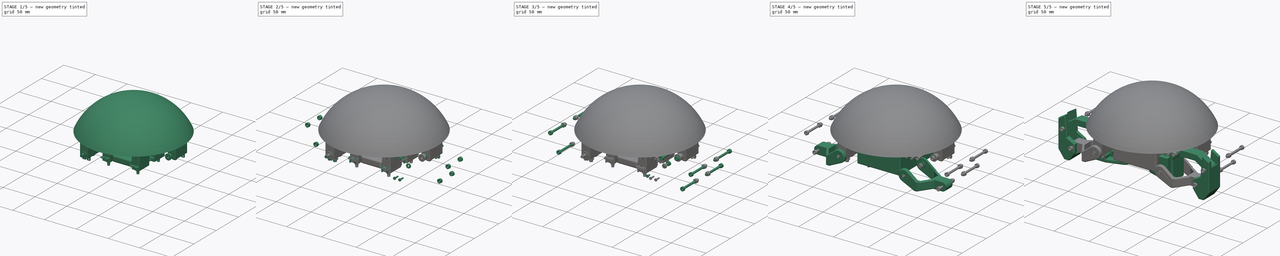
[diagram: build sequence overview — one tinted view per stage of 5, left to right]
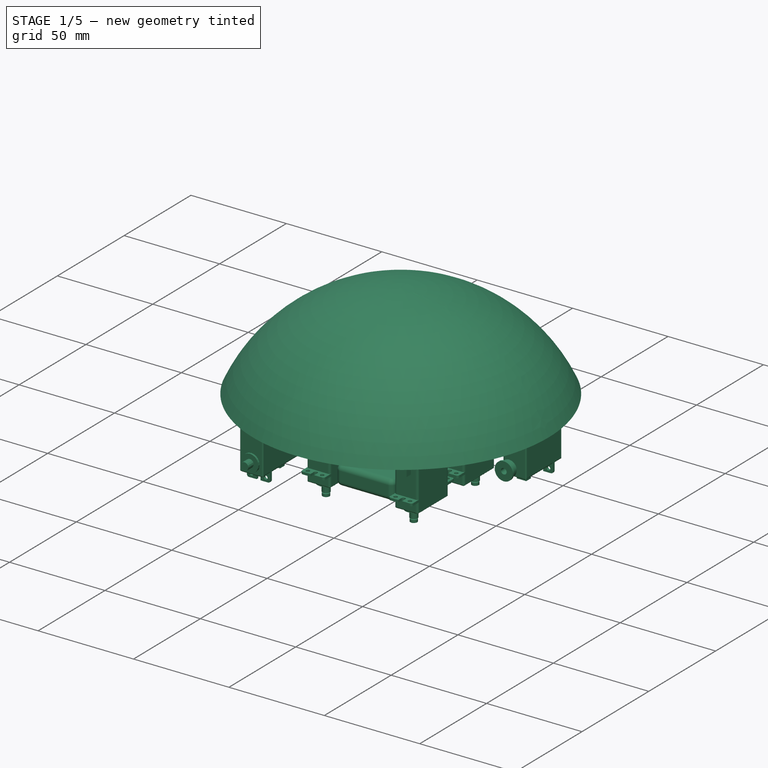
[diagram: stage 1 of 5 — iso view after this stage's code; geometry added in this stage tinted green]
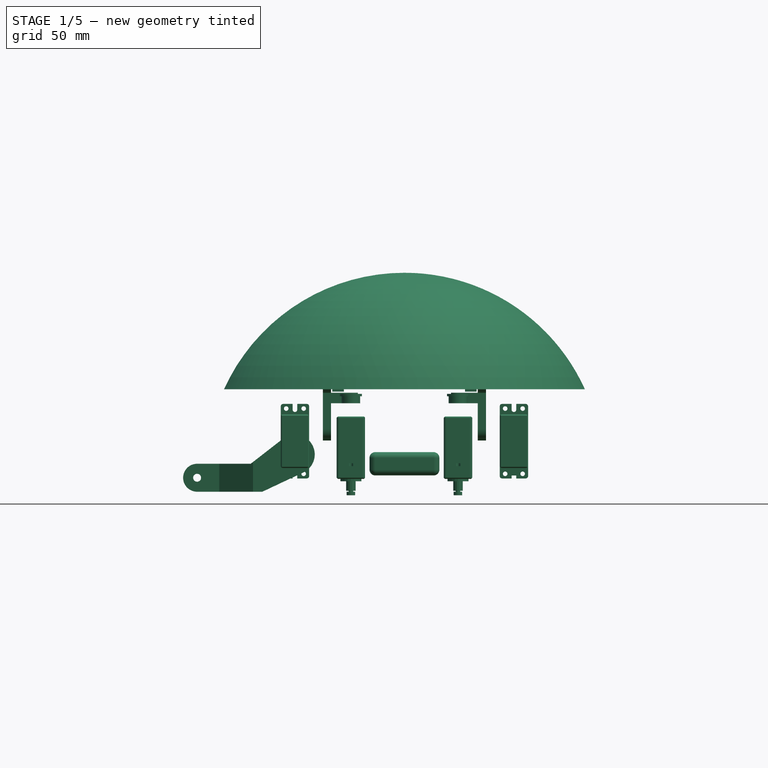
[diagram: stage 1 of 5 — front view after this stage's code; geometry added in this stage tinted green]
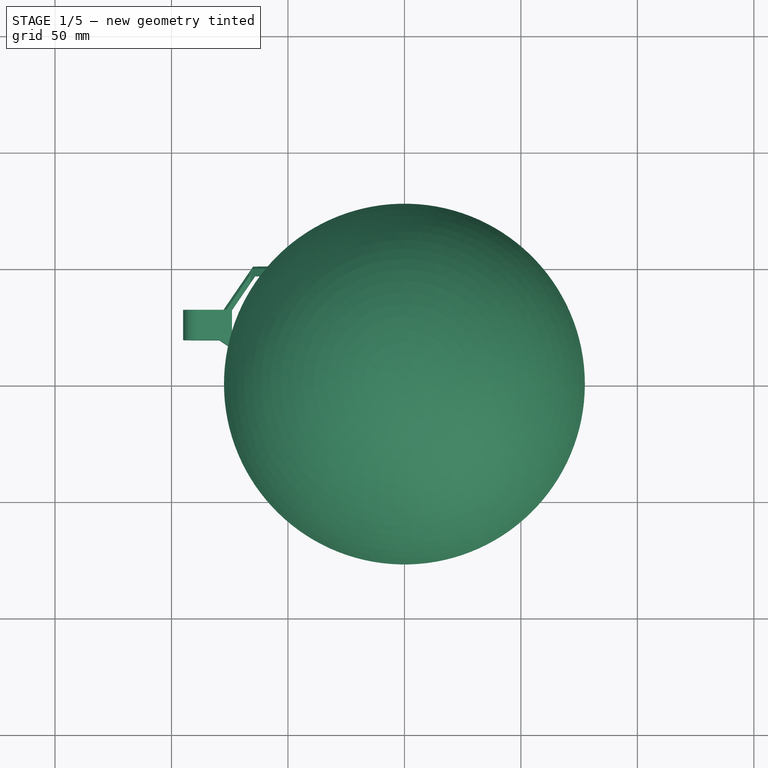
[diagram: stage 1 of 5 — top view after this stage's code; geometry added in this stage tinted green]
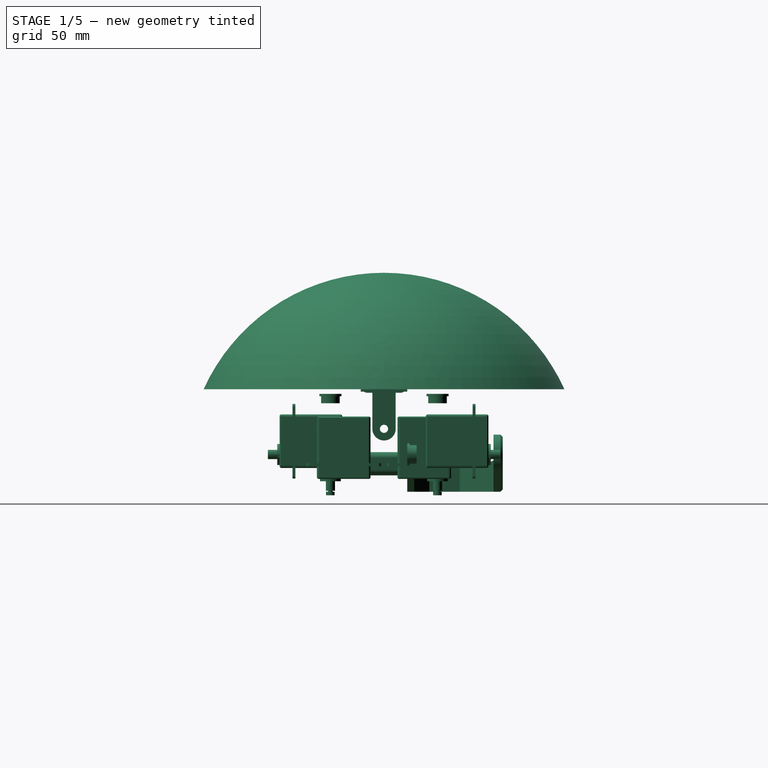
[diagram: stage 1 of 5 — right view after this stage's code; geometry added in this stage tinted green]
FCSTD DOCUMENT  (FreeCAD 0.16R6597 (Git))
Label: miniKame
License: All rights reserved
LicenseURL: http://es.wikipedia.org/wiki/Todos_los_derechos_reservados
objects: Part::FeaturePython×116, Part::Cut×32, Part::Mirroring×28, Sketcher::SketchObject×22, PartDesign::Pad×22, Part::Cylinder×20, Part::MultiFuse×20, Part::Feature×17, App::DocumentObjectGroup×14, Part::Box×13, Part::Chamfer×9, Part::Fillet×8, Part::Prism×6, Part::MultiCommon×2, Part::Sphere×2, Part::Cone×1, Spreadsheet::Sheet×1
note: 340 computed .brp shape members not serialized (recipe doc carries the construction recipe); baked Part::Feature solids carry a one-line shape summary decoded from their .brp

FEATURE [Part::Feature] Solid001  label="TGY-306G"
  shape: bbox 12.2 x 32 x 31.85 mm, 251 faces (baked)
FEATURE [Part::Box] Box  label="Cubo"
  Height = 10
  Length = 30
  Width = 55
FEATURE [Part::Fillet] Fillet  label="battery"
  Base = -> Box
  Edges = 12 edges r=2.5: [Edge1,Edge2,Edge3,Edge4,Edge5,Edge6,Edge7,Edge8,Edge9,Edge10,Edge11,Edge12]
FEATURE [Part::FeaturePython] Clone002  label="Clone of battery"  # Draft clone (typed FeaturePython)
  Objects = -> [Fillet]
  Placement = pos=(-15,-27.5,-2) rot=(0,0,1;0rad)
  Scale = (1,1,1)
FEATURE [Part::Cylinder] Cylinder016
  Angle = 360
  Height = 10
  Radius = 5.25
FEATURE [Part::Cylinder] Cylinder017
  Angle = 360
  Height = 10
  Placement = pos=(0,0,-5) rot=(0,0,1;0rad)
  Radius = 4.25
FEATURE [Sketcher::SketchObject] Sketch005
  Placement = pos=(0,55,0) rot=(0,0.707107,0.707107;3.14159rad)
  sketch-geometry (8):
    g0: ArcOfCircle CenterX=47 CenterY=7 CenterZ=0 NormalX=0 NormalY=0 NormalZ=1 Radius=8.5 StartAngle=0.910189 EndAngle=4.27175
    g1: LineSegment StartX=52.2156 StartY=13.7118 StartZ=0 EndX=66.0002 EndY=3 EndZ=0
    g2: LineSegment StartX=66.0002 StartY=3 StartZ=0 EndX=89 EndY=3 EndZ=0
    g3: LineSegment StartX=43.3746 StartY=-0.688059 StartZ=0 EndX=61.0008 EndY=-9 EndZ=0
    g4: LineSegment StartX=61.0008 StartY=-9 StartZ=0 EndX=89 EndY=-9 EndZ=0
    g5: ArcOfCircle CenterX=89 CenterY=-3 CenterZ=0 NormalX=0 NormalY=0 NormalZ=1 Radius=6 StartAngle=4.71239 EndAngle=7.85398
    g6: Circle CenterX=47 CenterY=7 CenterZ=0 NormalX=0 NormalY=0 NormalZ=1 Radius=1.7
    g7: Circle CenterX=89 CenterY=-3 CenterZ=0 NormalX=0 NormalY=0 NormalZ=1 Radius=1.7
  constraints (22):
    c: Tangent(g0,g1) = 1.5708
    c: Coincident(g1,g2)
    c: Horizontal(g2)
    c: Tangent(g0,g3) = -1.5708
    c: Coincident(g3,g4)
    c: Horizontal(g4)
    c: Coincident(g5,g2)
    c: Coincident(g5,g4)
    c: DistanceY(g-1,g0) = 7
    c: DistanceX(g-1,g0) = 47
    c: Tangent(g5,g2)
    c: Tangent(g4,g5)
    c: Radius(g0) = 8.5
    c: Radius(g5) = 6
    c: Coincident(g6,g0)
    c: Coincident(g7,g5)
    c: Radius(g7) = 1.7
    c: Equal(g7,g6)
    c: DistanceX(g0,g5) = 42  'x_length'
    c: Angle(g2,g1) = 2.48099
    c: Angle(g4,g3) = 2.70095
    c: DistanceY(g0,g5) = -10  'z_length'
FEATURE [PartDesign::Pad] Pad005
  Length = 50
  Length2 = 100
  Placement = pos=(0,55,0) rot=(0,0.707107,0.707107;3.14159rad)
  Reversed = true
  Sketch = -> Sketch005
  Type = 0
FEATURE [Sketcher::SketchObject] Sketch006
  Placement = pos=(0,0,-20) rot=(0,0,1;0rad)
  sketch-geometry (20):
    g0: LineSegment StartX=-102.641 StartY=32.5 StartZ=0 EndX=-77.6414 EndY=32.5 EndZ=0
    g1: LineSegment StartX=-77.6414 StartY=32.5 StartZ=0 EndX=-65 EndY=51 EndZ=0
    g2: LineSegment StartX=-65 StartY=51 StartZ=0 EndX=-36 EndY=51 EndZ=0
    g3: LineSegment StartX=-36 StartY=10 StartZ=0 EndX=-65 EndY=10 EndZ=0
    g4: LineSegment StartX=-65 StartY=10 StartZ=0 EndX=-79.4811 EndY=19.5 EndZ=0
    g5: LineSegment StartX=-79.4811 StartY=19.5 StartZ=0 EndX=-102.641 EndY=19.5 EndZ=0
    g6: LineSegment StartX=-102.641 StartY=19.5 StartZ=0 EndX=-102.641 EndY=32.5 EndZ=0
    g7: LineSegment StartX=-36 StartY=51 StartZ=0 EndX=-36 EndY=47 EndZ=0
    g8: LineSegment StartX=-36 StartY=47 StartZ=0 EndX=-64.0919 EndY=47 EndZ=0
    g9: LineSegment StartX=-64.0919 StartY=47 StartZ=0 EndX=-74 EndY=32.5 EndZ=0
    g10: LineSegment StartX=-74 StartY=32.5 StartZ=0 EndX=-74 EndY=19.5 EndZ=0
    g11: LineSegment StartX=-74 StartY=19.5 StartZ=0 EndX=-64.0919 EndY=13 EndZ=0
    g12: LineSegment StartX=-64.0919 StartY=13 StartZ=0 EndX=-36 EndY=13 EndZ=0
    g13: LineSegment StartX=-36 StartY=13 StartZ=0 EndX=-36 EndY=10 EndZ=0
    g14: LineSegment [constr] StartX=-79.4811 StartY=19.5 StartZ=0 EndX=-74 EndY=19.5 EndZ=0
    g15: LineSegment [constr] StartX=-77.6414 StartY=32.5 StartZ=0 EndX=-74 EndY=32.5 EndZ=0
    g16: LineSegment [constr] StartX=-64.0919 StartY=47 StartZ=0 EndX=-64.0919 EndY=13 EndZ=0
    g17: LineSegment [constr] StartX=-64.0919 StartY=47 StartZ=0 EndX=-66.5742 EndY=48.6962 EndZ=0
    g18: LineSegment [constr] StartX=-36 StartY=47 StartZ=0 EndX=-36 EndY=13 EndZ=0
    g19: LineSegment [constr] StartX=-64.0919 StartY=13 StartZ=0 EndX=-65.741 EndY=10.4861 EndZ=0
  constraints (56):
    c: Horizontal(g0)
    c: Coincident(g0,g1)
    c: Coincident(g1,g2)
    c: Horizontal(g2)
    c: Horizontal(g3)
    c: Coincident(g3,g4)
    c: Coincident(g4,g5)
    c: Horizontal(g5)
    c: Coincident(g5,g6)
    c: Coincident(g6,g0)
    c: Vertical(g6)
    c: Distance(g6) = 13
    c: Coincident(g2,g7)
    c: Vertical(g7)
    c: Coincident(g7,g8)
    c: Horizontal(g8)
    c: Coincident(g8,g9)
    c: Coincident(g9,g10)
    c: Vertical(g10)
    c: Coincident(g10,g11)
    c: Coincident(g11,g12)
    c: Horizontal(g12)
    c: Coincident(g12,g13)
    c: Coincident(g13,g3)
    c: Vertical(g13)
    c: Distance(g13) = 3
    c: Coincident(g14,g4)
    c: Horizontal(g14)
    c: Coincident(g15,g0)
    c: Coincident(g15,g9)
    c: Horizontal(g15)
    c: Coincident(g16,g8)
    c: Coincident(g16,g11)
    c: Vertical(g16)
    c: Parallel(g9,g1)
    c: Parallel(g4,g11)
    c: Coincident(g17,g8)
    c: PointOnObject(g17,g1)
    c: Perpendicular(g1,g17)
    c: Coincident(g14,g10)
    c: Distance(g7) = 4
    c: Coincident(g18,g12)
    c: Vertical(g18)
    c: Coincident(g7,g18)
    c: Distance(g18) = 34
    c: DistanceY(g5,g3) = -9.5
    c: DistanceX(g-1,g3) = -36
    c: Distance(g3) = 29
    c: Equal(g2,g3)
    c: Coincident(g19,g11)
    c: PointOnObject(g19,g4)
    c: Equal(g19,g17)
    c: Perpendicular(g4,g19)
    c: DistanceY(g-1,g12) = 13
    c: Distance(g0) = 25
    c: DistanceX(g10,g3) = 9
FEATURE [PartDesign::Pad] Pad006
  Length = 40
  Length2 = 100
  Placement = pos=(0,0,-20) rot=(0,0,1;0rad)
  Sketch = -> Sketch006
  Type = 0
FEATURE [Part::MultiCommon] Common  label="pre-bracket"
  Shapes = -> [Pad006,Pad005]
FEATURE [Part::Chamfer] Chamfer004
  Base = -> Common
  Edges = 5 edges r=1: [Edge6,Edge9,Edge20,Edge33,Edge34]
FEATURE [Part::MultiFuse] Fusion009
  Placement = pos=(-47,11,7) rot=(1,0,0;1.5708rad)
  Shapes = -> [Cylinder016,Cylinder017]
FEATURE [Part::Cut] Cut013
  Base = -> Chamfer004
  Tool = -> Fusion009
FEATURE [Sketcher::SketchObject] Sketch012
  Placement = pos=(0,49,0) rot=(0,0.707107,0.707107;3.14159rad)
  sketch-geometry (5):
    g0: ArcOfCircle CenterX=47 CenterY=7 CenterZ=0 NormalX=0 NormalY=0 NormalZ=1 Radius=4.25 StartAngle=0.819815 EndAngle=4.11947
    g1: ArcOfCircle CenterX=61.8696 CenterY=-4.82778 CenterZ=0 NormalX=0 NormalY=0 NormalZ=1 Radius=2.75 StartAngle=4.11947 EndAngle=7.103
    g2: LineSegment StartX=49.9 StartY=10.1068 StartZ=0 EndX=63.746 EndY=-2.81748 EndZ=0
    g3: LineSegment StartX=44.6252 StartY=3.47543 StartZ=0 EndX=60.3329 EndY=-7.10838 EndZ=0
    g4: LineSegment [constr] StartX=47 StartY=7 StartZ=0 EndX=61.8696 EndY=-4.82778 EndZ=0
  constraints (16):
    c: Coincident(g2,g0)
    c: Coincident(g2,g1)
    c: Coincident(g3,g0)
    c: Coincident(g1,g3)
    c: Tangent(g0,g3)
    c: Tangent(g0,g2)
    c: Tangent(g2,g1)
    c: Tangent(g3,g1)
    c: Radius(g0) = 4.25
    c: Radius(g1) = 2.75
    c: Distance(g0,g1) = 19
    c: DistanceY(g-1,g0) = 7
    c: DistanceX(g-1,g0) = 47
    c: Coincident(g4,g0)
    c: Coincident(g4,g1)
    c: Angle(g-1,g4) = 2.46964
FEATURE [PartDesign::Pad] Pad012
  Length = 10
  Length2 = 100
  Placement = pos=(0,49,0) rot=(0,0.707107,0.707107;3.14159rad)
  Sketch = -> Sketch012
  Type = 0
FEATURE [Part::Cylinder] Cylinder020
  Angle = 360
  Height = 10
  Placement = pos=(0,0,-4) rot=(0,0,1;0rad)
  Radius = 1.5
FEATURE [Part::MultiFuse] Fusion020
FEATURE [Part::Cut] Cut031  label="bearing"
  Base = -> Fusion020
  Tool = -> Cylinder020
FEATURE [App::DocumentObjectGroup] Grupo013  label="nuts"
  Group = -> [Clone095,Clone096,Clone097,Clone098,Clone099,Clone100,Clone101,Clone102,Clone103,Clone104,Clone106,Clone105,Clone107,Clone108,Clone109,Clone110,Clone111,Clone112,Clone113,Clone114,Clone115,Clone116]
FEATURE [Part::FeaturePython] Clone117  label="Clone of bearing002"  # Draft clone (typed FeaturePython)
  Objects = -> [Cut031]
  Placement = pos=(-23,23,33) rot=(1,0,0;3.14159rad)
  Scale = (1,1,1)
FEATURE [Part::FeaturePython] Clone118  label="Clone of bearing003"  # Draft clone (typed FeaturePython)
  Objects = -> [Cut031]
  Placement = pos=(23,-23,33) rot=(1,0,0;3.14159rad)
  Scale = (1,1,1)
FEATURE [Part::FeaturePython] Clone119  label="Clone of bearing004"  # Draft clone (typed FeaturePython)
  Objects = -> [Cut031]
  Placement = pos=(-23,-23,33) rot=(1,0,0;3.14159rad)
  Scale = (1,1,1)
FEATURE [Part::FeaturePython] Clone120  label="Clone of bearing005"  # Draft clone (typed FeaturePython)
  Objects = -> [Cut031]
  Placement = pos=(-47,-10,7) rot=(0,-0.707107,0.707107;3.14159rad)
  Scale = (1,1,1)
FEATURE [Part::FeaturePython] Clone121  label="Clone of bearing006"  # Draft clone (typed FeaturePython)
  Objects = -> [Cut031]
  Placement = pos=(-47,10,7) rot=(-1,0,0;1.5708rad)
  Scale = (1,1,1)
FEATURE [Part::FeaturePython] Clone122  label="Clone of bearing007"  # Draft clone (typed FeaturePython)
  Objects = -> [Cut031]
  Placement = pos=(47,10,7) rot=(-1,0,0;1.5708rad)
  Scale = (1,1,1)
FEATURE [App::DocumentObjectGroup] Grupo010  label="bearings"
  Group = -> [Clone018,Clone117,Clone118,Clone119,Clone019,Clone120,Clone121,Clone122]
FEATURE [Part::FeaturePython] Clone123  label="Clone of TGY-306G004"  # Draft clone (typed FeaturePython)
  Objects = -> [Solid001]
  Placement = pos=(-23,-23,23.3) rot=(1,0,0;3.14159rad)
  Scale = (1,1,1)
FEATURE [Part::FeaturePython] Clone124  label="Clone of TGY-306G005"  # Draft clone (typed FeaturePython)
  Objects = -> [Solid001]
  Placement = pos=(23,23,23.3) rot=(0,1,0;3.14159rad)
  Scale = (1,1,1)
FEATURE [Part::FeaturePython] Clone125  label="Clone of TGY-306G006"  # Draft clone (typed FeaturePython)
  Objects = -> [Solid001]
  Placement = pos=(23,-23,23.3) rot=(1,0,0;3.14159rad)
  Scale = (1,1,1)
FEATURE [Part::FeaturePython] Clone126  label="Clone of TGY-306G007"  # Draft clone (typed FeaturePython)
  Objects = -> [Solid001]
  Placement = pos=(-47,-18,7) rot=(0,-0.707107,0.707107;3.14159rad)
  Scale = (1,1,1)
FEATURE [Part::FeaturePython] Clone127  label="Clone of TGY-306G008"  # Draft clone (typed FeaturePython)
  Objects = -> [Solid001]
  Placement = pos=(-47,18,7) rot=(-1,0,0;1.5708rad)
  Scale = (1,1,1)
FEATURE [Part::FeaturePython] Clone128  label="Clone of TGY-306G009"  # Draft clone (typed FeaturePython)
  Objects = -> [Solid001]
  Placement = pos=(47,18,7) rot=(-1,0,0;1.5708rad)
  Scale = (1,1,1)
FEATURE [App::DocumentObjectGroup] Grupo004  label="servos"
  Group = -> [Clone005,Clone,Clone123,Clone124,Clone125,Clone126,Clone127,Clone128]
FEATURE [App::DocumentObjectGroup] Grupo014  label="electronic"
  Group = -> [Clone002]
FEATURE [Part::FeaturePython] Clone129  label="Clone of hex-m2-4mm004"  # Draft clone (typed FeaturePython)
  Objects = -> [Chamfer013]
  Placement = pos=(22.9737,-23.0298,-9) rot=(1,0,0;3.14159rad)
  Scale = (1,1,1)
FEATURE [Part::FeaturePython] Clone130  label="Clone of hex-m2-4mm005"  # Draft clone (typed FeaturePython)
  Objects = -> [Chamfer013]
  Placement = pos=(-22.9909,-23.0768,-9) rot=(1,0,0;3.14159rad)
  Scale = (1,1,1)
FEATURE [Part::FeaturePython] Clone131  label="Clone of hex-m2-4mm006"  # Draft clone (typed FeaturePython)
  Objects = -> [Chamfer013]
  Placement = pos=(-22.9747,22.9186,-9) rot=(1,0,0;3.14159rad)
  Scale = (1,1,1)
FEATURE [Part::FeaturePython] Clone132  label="Clone of hex-m2-4mm007"  # Draft clone (typed FeaturePython)
  Objects = -> [Chamfer013]
  Placement = pos=(22.9617,22.9712,-9) rot=(1,0,0;3.14159rad)
  Scale = (1,1,1)
FEATURE [App::DocumentObjectGroup] Grupo012  label="bolts"
  Group = -> [Clone022,Clone023,Clone024,Clone025,Clone026,Clone027,Clone028,Clone029,Clone030,Clone031,Clone032,Clone033,Clone034,Clone035,Clone036,Clone037,Clone038,Clone039,Clone040,Clone041,Clone042,Clone043,Clone044,Clone045,Clone046,Clone047,Clone063,Clone064,Clone065,Clone066,Clone067,Clone068,Clone069,Clone070,Clone071,Clone072,Clone073,Clone074,Clone075,Clone076,Clone077,Clone078,Clone079,Clone080,+18 more]
FEATURE [Part::Sphere] Sphere  label="Esfera"
  Angle1 = -90
  Angle2 = 90
  Angle3 = 360
  Radius = 85
FEATURE [Part::Box] Box015  label="Cubo015"
  Height = 185
  Length = 400
  Placement = pos=(-200,-200,-150) rot=(0,0,1;0rad)
  Width = 400
FEATURE [Part::Cut] Cut033
  Base = -> Sphere
  Tool = -> Box015
FEATURE [Part::Sphere] Sphere001  label="Esfera001"
  Angle1 = -90
  Angle2 = 90
  Angle3 = 360
  Radius = 82
FEATURE [Part::Cut] Cut034
  Base = -> Cut033
  Tool = -> Sphere001
FEATURE [Sketcher::SketchObject] Sketch022
  Placement = pos=(0,-40,0) rot=(1,0,0;1.5708rad)
  sketch-geometry (8):
    g0: LineSegment StartX=-31.5 StartY=12 StartZ=0 EndX=-35 EndY=12 EndZ=0
    g1: LineSegment StartX=-35 StartY=12 StartZ=0 EndX=-35 EndY=53.5 EndZ=0
    g2: LineSegment StartX=-35 StartY=53.5 StartZ=0 EndX=-31.5 EndY=53.5 EndZ=0
    g3: LineSegment StartX=-31.5 StartY=53.5 StartZ=0 EndX=-31.5 EndY=33.5 EndZ=0
    g4: LineSegment StartX=-31.5 StartY=33.5 StartZ=0 EndX=-20 EndY=33.5 EndZ=0
    g5: LineSegment StartX=-20 StartY=33.5 StartZ=0 EndX=-20 EndY=29 EndZ=0
    g6: LineSegment StartX=-20 StartY=29 StartZ=0 EndX=-31.5 EndY=29 EndZ=0
    g7: LineSegment StartX=-31.5 StartY=29 StartZ=0 EndX=-31.5 EndY=12 EndZ=0
  constraints (24):
    c: Horizontal(g0)
    c: Coincident(g0,g1)
    c: Vertical(g1)
    c: Coincident(g1,g2)
    c: Horizontal(g2)
    c: Coincident(g2,g3)
    c: Vertical(g3)
    c: Coincident(g3,g4)
    c: Horizontal(g4)
    c: Coincident(g4,g5)
    c: Vertical(g5)
    c: Coincident(g5,g6)
    c: Horizontal(g6)
    c: Coincident(g6,g7)
    c: Coincident(g7,g0)
    c: Vertical(g7)
    c: Distance(g0) = 3.5
    c: DistanceX(g-1,g0) = -35
    c: DistanceY(g7) = -17
    c: Distance(g4) = 11.5
    c: Distance(g3) = 20
    c: DistanceY(g-1,g0) = 12
    c: Equal(g2,g0)
    c: Distance(g5) = 4.5
FEATURE [Sketcher::SketchObject] Sketch023
  Placement = pos=(-50,0,0) rot=(0.57735,-0.57735,-0.57735;2.0944rad)
  sketch-geometry (11):
    g0: ArcOfCircle CenterX=0 CenterY=18 CenterZ=0 NormalX=0 NormalY=0 NormalZ=1 Radius=5 StartAngle=3.14159 EndAngle=6.28319
    g1: LineSegment StartX=-5 StartY=18 StartZ=0 EndX=-5 EndY=33.5 EndZ=0
    g2: LineSegment StartX=-5 StartY=33.5 StartZ=0 EndX=-10 EndY=33.5 EndZ=0
    g3: LineSegment StartX=-10 StartY=33.5 StartZ=0 EndX=-10 EndY=41.5 EndZ=0
    g4: LineSegment StartX=-10 StartY=41.5 StartZ=0 EndX=10 EndY=41.5 EndZ=0
    g5: LineSegment StartX=10 StartY=41.5 StartZ=0 EndX=10 EndY=33.5 EndZ=0
    g6: LineSegment StartX=10 StartY=33.5 StartZ=0 EndX=5 EndY=33.5 EndZ=0
    g7: LineSegment StartX=5 StartY=33.5 StartZ=0 EndX=5 EndY=18 EndZ=0
    g8: Circle CenterX=-5.5 CenterY=37.5 CenterZ=0 NormalX=0 NormalY=0 NormalZ=1 Radius=1.75
    g9: Circle CenterX=5.5 CenterY=37.5 CenterZ=0 NormalX=0 NormalY=0 NormalZ=1 Radius=1.75
    g10: Circle CenterX=0 CenterY=18 CenterZ=0 NormalX=0 NormalY=0 NormalZ=1 Radius=1.75
  constraints (31):
    c: Tangent(g0,g1) = 1.5708
    c: Coincident(g1,g2)
    c: Horizontal(g2)
    c: Coincident(g2,g3)
    c: Vertical(g3)
    c: Horizontal(g4)
    c: Vertical(g5)
    c: Coincident(g5,g6)
    c: Horizontal(g6)
    c: Coincident(g6,g7)
    c: Coincident(g7,g0)
    c: Vertical(g1)
    c: Vertical(g7)
    c: Radius(g0) = 5
    c: Tangent(g7,g0)
    c: Equal(g1,g7)
    c: Symmetric(g2,g5,g-2)
    c: PointOnObject(g0,g-2)
    c: Distance(g-1,g0) = 18
    c: Distance(g1) = 15.5
    c: Coincident(g10,g0)
    c: Radius(g8) = 1.75
    c: Equal(g8,g9)
    c: Equal(g8,g10)
    c: Symmetric(g9,g8,g-2)
    c: Distance(g9,g8) = 11
    c: DistanceY(g4,g2) = -8
    c: DistanceY(g4,g8) = -4
    c: Distance(g2,g5) = 20
    c: Coincident(g4,g3)
    c: Coincident(g4,g5)
FEATURE [PartDesign::Pad] Pad024
  Length = 40
  Length2 = 100
  Placement = pos=(-50,0,0) rot=(0.57735,-0.57735,-0.57735;2.0944rad)
  Reversed = true
  Sketch = -> Sketch023
  Type = 0
FEATURE [PartDesign::Pad] Pad025
  Length = 70
  Length2 = 100
  Placement = pos=(0,-40,0) rot=(1,0,0;1.5708rad)
  Reversed = true
  Sketch = -> Sketch022
  Type = 0
FEATURE [Part::MultiCommon] Common001
  Shapes = -> [Pad025,Pad024]
FEATURE [Part::Fillet] Fillet011  label="support"
  Base = -> Common001
  Edges = 6 edges r=3: [Edge9,Edge18,Edge39,Edge40,Edge41,Edge42]
FEATURE [App::DocumentObjectGroup] Grupo005  label="parts"
  Group = -> [Cut020,Chamfer005,Pad007,Fusion018,Cut026,Cut032,Pad023,Fillet011]
FEATURE [App::DocumentObjectGroup] Grupo  label="src"
  Group = -> [Grupo001,Grupo005]
FEATURE [Part::FeaturePython] Clone133  label="Clone of support"  # Draft clone (typed FeaturePython)
  Objects = -> [Fillet011]
  Scale = (1,1,1)
FEATURE [Part::FeaturePython] Clone134  label="Clone of support001"  # Draft clone (typed FeaturePython)
  Objects = -> [Fillet011]
  Placement = pos=(0,0,0) rot=(0,0,1;3.14159rad)
  Scale = (1,1,1)
FEATURE [App::DocumentObjectGroup] Grupo003  label="assembly"
  Group = -> [Grupo004,Grupo006,Grupo007,Grupo008,Grupo009,Grupo010,Grupo012,Grupo013,Grupo014,Clone133,Clone134]
FEATURE [Part::FeaturePython] Clone135  label="Clone of support002"  # Draft clone (typed FeaturePython)
  Objects = -> [Fillet011]
  Scale = (1,1,1)
FEATURE [Part::FeaturePython] Clone136  label="Clone of support003"  # Draft clone (typed FeaturePython)
  Objects = -> [Fillet011]
  Placement = pos=(0,0,0) rot=(0,0,1;3.14159rad)
  Scale = (1,1,1)
FEATURE [Sketcher::SketchObject] Sketch024
  Placement = pos=(0,-10,0) rot=(1,0,0;1.5708rad)
  sketch-geometry (4):
    g0: LineSegment StartX=-25.982 StartY=33.9812 StartZ=0 EndX=-30.982 EndY=33.9812 EndZ=0
    g1: LineSegment StartX=-30.982 StartY=33.9812 StartZ=0 EndX=-30.982 EndY=75.7568 EndZ=0
    g2: LineSegment StartX=-30.982 StartY=75.7568 StartZ=0 EndX=-25.982 EndY=77.9812 EndZ=0
    g3: LineSegment StartX=-25.982 StartY=77.9812 StartZ=0 EndX=-25.982 EndY=33.9812 EndZ=0
  constraints (9):
    c: Coincident(g0,g1)
    c: Coincident(g1,g2)
    c: Coincident(g2,g3)
    c: Coincident(g3,g0)
    c: Horizontal(g0)
    c: Vertical(g3)
    c: Distance(g0) = 5
    c: Distance(g3) = 44
    c: Vertical(g1)
FEATURE [PartDesign::Pad] Pad026
  Length = 20
  Length2 = 100
  Placement = pos=(0,-10,0) rot=(1,0,0;1.5708rad)
  Reversed = true
  Sketch = -> Sketch024
  Type = 0
FEATURE [Part::FeaturePython] Clone137  label="Clone of Pad026"  # Draft clone (typed FeaturePython)
  Objects = -> [Pad026]
  Placement = pos=(0,10,0) rot=(0,0.707107,0.707107;3.14159rad)
  Scale = (1,1,1)
FEATURE [Part::Box] Box016  label="Cubo016"
  Height = 4
  Length = 134
  Placement = pos=(-67,-7,47) rot=(0,0,1;0rad)
  Width = 14
FEATURE [Part::Box] Box017  label="Cubo017"
  Height = 4
  Length = 134
  Placement = pos=(7,-67,47) rot=(0,0,1;1.5708rad)
  Width = 14
FEATURE [Part::MultiFuse] Fusion023
  Shapes = -> [Box016,Box017,Pad026,Clone137,Cut034]
FEATURE [Part::Cylinder] Cylinder022  label="Cilindro018"
  Angle = 360
  Height = 80
  Placement = pos=(-40,5.5,37.5) rot=(0,1,0;1.5708rad)
  Radius = 1.75
FEATURE [Part::Cylinder] Cylinder023  label="Cilindro019"
  Angle = 360
  Height = 80
  Placement = pos=(-40,-5.5,37.5) rot=(0,1,0;1.5708rad)
  Radius = 1.75
FEATURE [Part::MultiFuse] Fusion024
  Shapes = -> [Cylinder022,Cylinder023]
FEATURE [Part::Cut] Cut035
  Base = -> Fusion023
  Tool = -> Fusion024
FEATURE [Spreadsheet::Sheet] Spreadsheet  label="configuration"
  cells = A1=COMPONENTS; F1=PRINTER SETTINGS; A3=Servo; B3=Model; C3=TGY-306G-HV; F3=Tolerance; G3=X; H3=0.25; B4=A; C4=31; G4=Y; H4=0.25; B5=B; C5=23; G5=Z; H5=0.25; B6=C; C6=27; G6=default; H6=0.25; B7=D; C7=12; B8=E; C8=32; B9=F; C9=20; A11=Horn; B11=R; B12=r; B13=l; A15=Battery; B15=Model; B16=A; B17=B; B18=C
FEATURE [Part::Cylinder] Cylinder024  label="Cilindro020"
  Angle = 360
  Height = 14
  Placement = pos=(-47,58,7) rot=(1,0,0;1.5708rad)
  Radius = 4.3
FEATURE [Part::MultiFuse] Fusion025
  Shapes = -> [Cylinder024,Pad012]
FEATURE [Part::Cut] Cut036
  Base = -> Cut013
  Tool = -> Fusion025
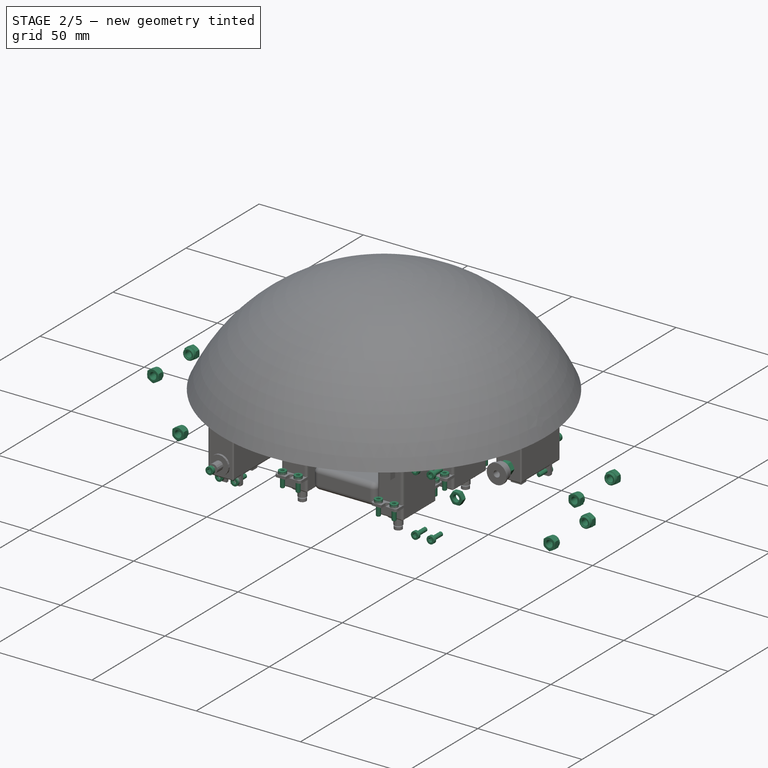
[diagram: stage 2 of 5 — iso view after this stage's code; geometry added in this stage tinted green]
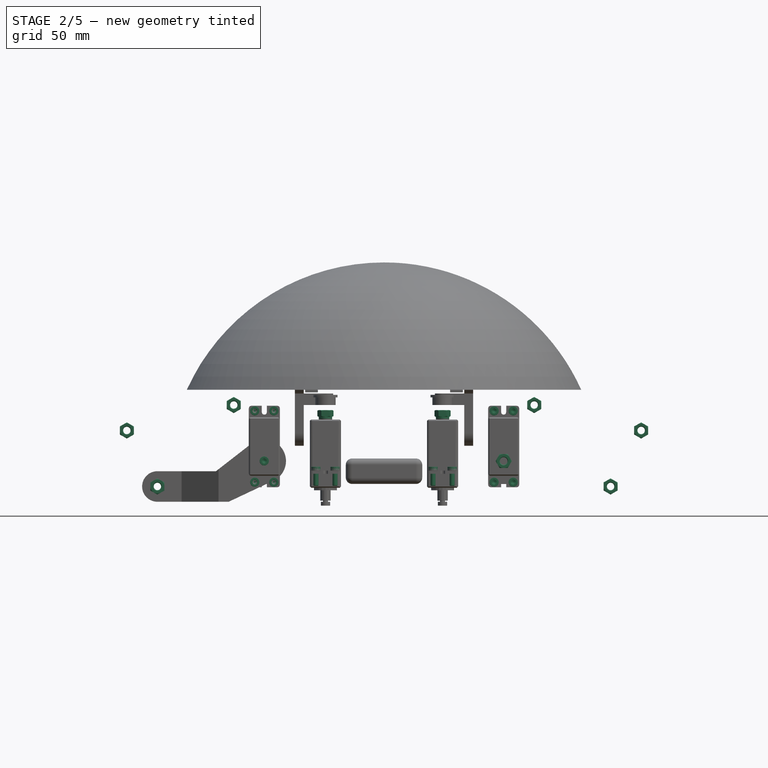
[diagram: stage 2 of 5 — front view after this stage's code; geometry added in this stage tinted green]
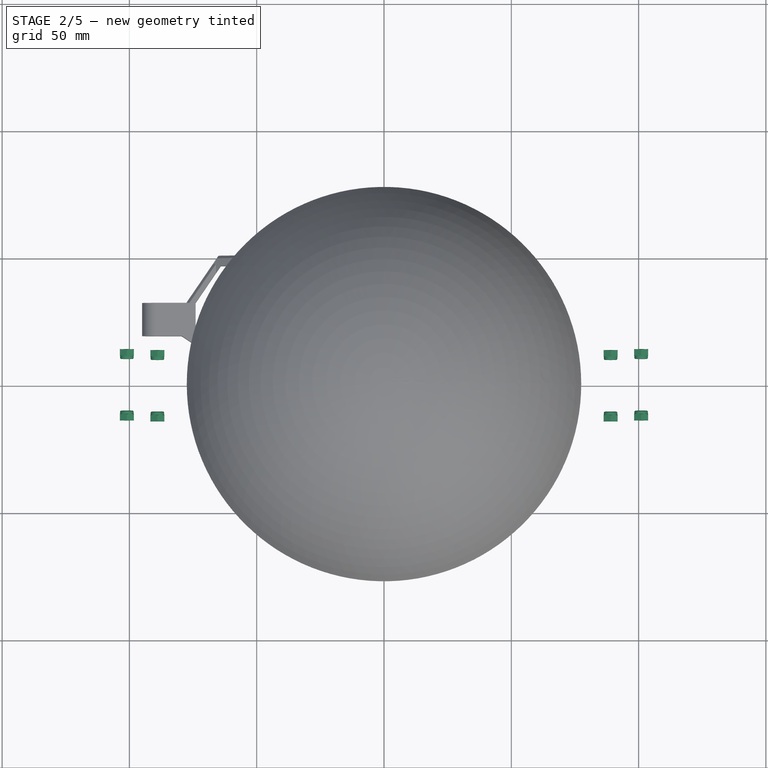
[diagram: stage 2 of 5 — top view after this stage's code; geometry added in this stage tinted green]
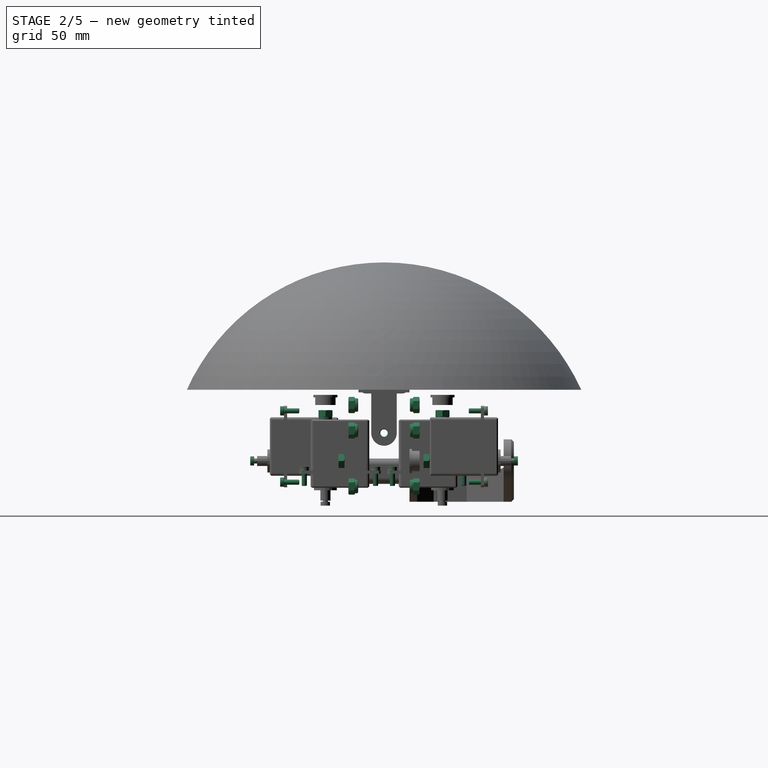
[diagram: stage 2 of 5 — right view after this stage's code; geometry added in this stage tinted green]
FEATURE [App::DocumentObjectGroup] Grupo007  label="legs"
  Group = -> [Part__Mirroring018,Part__Mirroring019,Part__Mirroring021,Part__Mirroring022,Part__Mirroring023,Part__Mirroring025,Part__Mirroring034,Part__Mirroring035,Part__Mirroring043,Part__Mirroring044]
FEATURE [Part::Feature] Part__Feature001  label="Nyloc-nut-M3"
  shape: bbox 6.35 x 6.35 x 3.86 mm, 32 faces (baked)
FEATURE [Part::Feature] Part__Feature002  label="Nyloc-nut-M004"
  shape: bbox 3.5 x 3.5 x 0.95 mm, 4 faces (baked)
FEATURE [Part::MultiFuse] Fusion  label="m3-nyloc-nut"
  Shapes = -> [Part__Feature001,Part__Feature002]
FEATURE [Part::FeaturePython] Clone045  label="Clone of hex-m2-4mm001"  # Draft clone (typed FeaturePython)
  Objects = -> [Chamfer013]
  Placement = pos=(-47.1019,51.0089,7.03289) rot=(-1,0,0;1.5708rad)
  Scale = (1,1,1)
FEATURE [Part::FeaturePython] Clone046  label="Clone of hex-m2-4mm002"  # Draft clone (typed FeaturePython)
  Objects = -> [Chamfer013]
  Placement = pos=(47.006,51.0807,7.03289) rot=(-1,0,0;1.5708rad)
  Scale = (1,1,1)
FEATURE [Part::FeaturePython] Clone047  label="Clone of hex-m2-4mm003"  # Draft clone (typed FeaturePython)
  Objects = -> [Chamfer013]
  Placement = pos=(-47.0425,-51.021,7.03289) rot=(1,0,0;1.5708rad)
  Scale = (1,1,1)
FEATURE [Part::Feature] Chamfer018  label="hex-m2-6mm"
  shape: bbox 5.445 x 6.287 x 7.5 mm, 16 faces (baked)
FEATURE [App::DocumentObjectGroup] Grupo011  label="bolts and nuts"
  Group = -> [Chamfer010,Fusion,Part__Feature003,Part__Feature004,Fusion022,Chamfer013,Chamfer018]
FEATURE [App::DocumentObjectGroup] Grupo001  label="components"
  Group = -> [Solid001,Fillet,Cut018,Cut031,Grupo011]
FEATURE [Part::FeaturePython] Clone063  label="Clone of hex-m2-6mm015"  # Draft clone (typed FeaturePython)
  Objects = -> [Chamfer018]
  Placement = pos=(-26.75,-31.3,3.25) rot=(0,0,1;0rad)
  Scale = (1,1,1)
FEATURE [Part::FeaturePython] Clone064  label="Clone of hex-m2-6mm014"  # Draft clone (typed FeaturePython)
  Objects = -> [Chamfer018]
  Placement = pos=(-19.25,-31.3,3.25) rot=(0,0,1;0rad)
  Scale = (1,1,1)
FEATURE [Part::FeaturePython] Clone065  label="Clone of hex-m2-6mm013"  # Draft clone (typed FeaturePython)
  Objects = -> [Chamfer018]
  Placement = pos=(19.25,-31.3,3.25) rot=(0,0,1;0rad)
  Scale = (1,1,1)
FEATURE [Part::FeaturePython] Clone066  label="Clone of hex-m2-6mm012"  # Draft clone (typed FeaturePython)
  Objects = -> [Chamfer018]
  Placement = pos=(26.75,-31.3,3.25) rot=(0,0,1;0rad)
  Scale = (1,1,1)
FEATURE [Part::FeaturePython] Clone067  label="Clone of hex-m2-6mm011"  # Draft clone (typed FeaturePython)
  Objects = -> [Chamfer018]
  Placement = pos=(-26.75,31.3,3.25) rot=(0,0,1;0rad)
  Scale = (1,1,1)
FEATURE [Part::FeaturePython] Clone068  label="Clone of hex-m2-6mm010"  # Draft clone (typed FeaturePython)
  Objects = -> [Chamfer018]
  Placement = pos=(-19.25,31.3,3.25) rot=(0,0,1;0rad)
  Scale = (1,1,1)
FEATURE [Part::FeaturePython] Clone069  label="Clone of hex-m2-6mm009"  # Draft clone (typed FeaturePython)
  Objects = -> [Chamfer018]
  Placement = pos=(19.25,31.3,3.25) rot=(0,0,1;0rad)
  Scale = (1,1,1)
FEATURE [Part::FeaturePython] Clone070  label="Clone of hex-m2-6mm008"  # Draft clone (typed FeaturePython)
  Objects = -> [Chamfer018]
  Placement = pos=(26.75,31.3,3.25) rot=(0,0,1;0rad)
  Scale = (1,1,1)
FEATURE [Part::FeaturePython] Clone071  label="Clone of hex-m2-6mm007"  # Draft clone (typed FeaturePython)
  Objects = -> [Chamfer018]
  Placement = pos=(-26.75,-3.3,3.25) rot=(0,0,1;0rad)
  Scale = (1,1,1)
FEATURE [Part::FeaturePython] Clone072  label="Clone of hex-m2-6mm006"  # Draft clone (typed FeaturePython)
  Objects = -> [Chamfer018]
  Placement = pos=(-19.25,-3.3,3.25) rot=(0,0,1;0rad)
  Scale = (1,1,1)
FEATURE [Part::FeaturePython] Clone073  label="Clone of hex-m2-6mm005"  # Draft clone (typed FeaturePython)
  Objects = -> [Chamfer018]
  Placement = pos=(19.25,-3.3,3.25) rot=(0,0,1;0rad)
  Scale = (1,1,1)
FEATURE [Part::FeaturePython] Clone074  label="Clone of hex-m2-6mm004"  # Draft clone (typed FeaturePython)
  Objects = -> [Chamfer018]
  Placement = pos=(26.75,-3.3,3.25) rot=(0,0,1;0rad)
  Scale = (1,1,1)
FEATURE [Part::FeaturePython] Clone075  label="Clone of hex-m2-6mm003"  # Draft clone (typed FeaturePython)
  Objects = -> [Chamfer018]
  Placement = pos=(-26.75,3.3,3.25) rot=(0,0,1;0rad)
  Scale = (1,1,1)
FEATURE [Part::FeaturePython] Clone076  label="Clone of hex-m2-6mm002"  # Draft clone (typed FeaturePython)
  Objects = -> [Chamfer018]
  Placement = pos=(-19.25,3.3,3.25) rot=(0,0,1;0rad)
  Scale = (1,1,1)
FEATURE [Part::FeaturePython] Clone077  label="Clone of hex-m2-6mm001"  # Draft clone (typed FeaturePython)
  Objects = -> [Chamfer018]
  Placement = pos=(19.25,3.3,3.25) rot=(0,0,1;0rad)
  Scale = (1,1,1)
FEATURE [Part::FeaturePython] Clone078  label="Clone of hex-m2-6mm"  # Draft clone (typed FeaturePython)
  Objects = -> [Chamfer018]
  Placement = pos=(26.75,3.3,3.25) rot=(0,0,1;0rad)
  Scale = (1,1,1)
FEATURE [Part::FeaturePython] Clone079  label="Clone of hex-m2-6mm016"  # Draft clone (typed FeaturePython)
  Objects = -> [Chamfer018]
  Placement = pos=(-43.25,-39.3,26.7) rot=(1,0,0;1.5708rad)
  Scale = (1,1,1)
FEATURE [Part::FeaturePython] Clone080  label="Clone of hex-m2-6mm017"  # Draft clone (typed FeaturePython)
  Objects = -> [Chamfer018]
  Placement = pos=(50.75,-39.3,26.7) rot=(1,0,0;1.5708rad)
  Scale = (1,1,1)
FEATURE [Part::FeaturePython] Clone081  label="Clone of hex-m2-6mm018"  # Draft clone (typed FeaturePython)
  Objects = -> [Chamfer018]
  Placement = pos=(43.25,-39.3,26.7) rot=(1,0,0;1.5708rad)
  Scale = (1,1,1)
FEATURE [Part::FeaturePython] Clone082  label="Clone of hex-m2-6mm019"  # Draft clone (typed FeaturePython)
  Objects = -> [Chamfer018]
  Placement = pos=(-50.75,-39.3,26.7) rot=(1,0,0;1.5708rad)
  Scale = (1,1,1)
FEATURE [Part::FeaturePython] Clone083  label="Clone of hex-m2-6mm020"  # Draft clone (typed FeaturePython)
  Objects = -> [Chamfer018]
  Placement = pos=(-43.25,-39.3,-1.3) rot=(1,0,0;1.5708rad)
  Scale = (1,1,1)
FEATURE [Part::FeaturePython] Clone084  label="Clone of hex-m2-6mm021"  # Draft clone (typed FeaturePython)
  Objects = -> [Chamfer018]
  Placement = pos=(50.75,-39.3,-1.3) rot=(1,0,0;1.5708rad)
  Scale = (1,1,1)
FEATURE [Part::FeaturePython] Clone085  label="Clone of hex-m2-6mm022"  # Draft clone (typed FeaturePython)
  Objects = -> [Chamfer018]
  Placement = pos=(43.25,-39.3,-1.3) rot=(1,0,0;1.5708rad)
  Scale = (1,1,1)
FEATURE [Part::FeaturePython] Clone086  label="Clone of hex-m2-6mm023"  # Draft clone (typed FeaturePython)
  Objects = -> [Chamfer018]
  Placement = pos=(-50.75,-39.3,-1.3) rot=(1,0,0;1.5708rad)
  Scale = (1,1,1)
FEATURE [Part::FeaturePython] Clone087  label="Clone of hex-m2-6mm024"  # Draft clone (typed FeaturePython)
  Objects = -> [Chamfer018]
  Placement = pos=(43.25,39.3,26.7) rot=(0,0.707107,0.707107;3.14159rad)
  Scale = (1,1,1)
FEATURE [Part::FeaturePython] Clone090  label="Clone of hex-m2-6mm027"  # Draft clone (typed FeaturePython)
  Objects = -> [Chamfer018]
  Placement = pos=(50.75,39.3,26.7) rot=(0,0.707107,0.707107;3.14159rad)
  Scale = (1,1,1)
FEATURE [Part::FeaturePython] Clone091  label="Clone of hex-m2-6mm028"  # Draft clone (typed FeaturePython)
  Objects = -> [Chamfer018]
  Placement = pos=(43.25,39.3,-1.3) rot=(0,0.707107,0.707107;3.14159rad)
  Scale = (1,1,1)
FEATURE [Part::FeaturePython] Clone092  label="Clone of hex-m2-6mm029"  # Draft clone (typed FeaturePython)
  Objects = -> [Chamfer018]
  Placement = pos=(-50.75,39.3,-1.3) rot=(0,0.707107,0.707107;3.14159rad)
  Scale = (1,1,1)
FEATURE [Part::FeaturePython] Clone093  label="Clone of hex-m2-6mm030"  # Draft clone (typed FeaturePython)
  Objects = -> [Chamfer018]
  Placement = pos=(-43.25,39.3,-1.3) rot=(0,0.707107,0.707107;3.14159rad)
  Scale = (1,1,1)
FEATURE [Part::FeaturePython] Clone094  label="Clone of hex-m2-6mm031"  # Draft clone (typed FeaturePython)
  Objects = -> [Chamfer018]
  Placement = pos=(50.75,39.3,-1.3) rot=(0,0.707107,0.707107;3.14159rad)
  Scale = (1,1,1)
FEATURE [Part::FeaturePython] Clone095  label="Clone of m3-nut"  # Draft clone (typed FeaturePython)
  Objects = -> [Part__Feature003]
  Placement = pos=(47,-15.5,7) rot=(0.935113,-0.250563,0.250563;1.63783rad)
  Scale = (1,1,1)
FEATURE [Part::FeaturePython] Clone096  label="Clone of m3-nut001"  # Draft clone (typed FeaturePython)
  Objects = -> [Part__Feature003]
  Placement = pos=(-47,-15.5,7) rot=(0.935113,-0.250563,0.250563;1.63783rad)
  Scale = (1,1,1)
FEATURE [Part::FeaturePython] Clone097  label="Clone of m3-nut002"  # Draft clone (typed FeaturePython)
  Objects = -> [Part__Feature003]
  Placement = pos=(47,17.9,7) rot=(0.935113,-0.250563,0.250563;1.63783rad)
  Scale = (1,1,1)
FEATURE [Part::FeaturePython] Clone098  label="Clone of m3-nut003"  # Draft clone (typed FeaturePython)
  Objects = -> [Part__Feature003]
  Placement = pos=(-47,17.9,7) rot=(0.935113,-0.250563,0.250563;1.63783rad)
  Scale = (1,1,1)
FEATURE [Part::FeaturePython] Clone099  label="Clone of m3-nyloc-nut"  # Draft clone (typed FeaturePython)
  Objects = -> [Fusion]
  Placement = pos=(-101,14,19) rot=(0,-0.707107,0.707107;3.14159rad)
  Scale = (1,1,1)
FEATURE [Part::FeaturePython] Clone100  label="Clone of m3-nyloc-nut001"  # Draft clone (typed FeaturePython)
  Objects = -> [Fusion]
  Placement = pos=(-89,14,-3) rot=(0,-0.707107,0.707107;3.14159rad)
  Scale = (1,1,1)
FEATURE [Part::FeaturePython] Clone101  label="Clone of m3-nyloc-nut002"  # Draft clone (typed FeaturePython)
  Objects = -> [Fusion]
  Placement = pos=(-59,14,29) rot=(0,-0.707107,0.707107;3.14159rad)
  Scale = (1,1,1)
FEATURE [Part::FeaturePython] Clone102  label="Clone of m3-nyloc-nut003"  # Draft clone (typed FeaturePython)
  Objects = -> [Fusion]
  Placement = pos=(101,-14,19) rot=(-1,0,0;1.5708rad)
  Scale = (1,1,1)
FEATURE [Part::FeaturePython] Clone103  label="Clone of m3-nyloc-nut004"  # Draft clone (typed FeaturePython)
  Objects = -> [Fusion]
  Placement = pos=(59,-14,29) rot=(-1,0,0;1.5708rad)
  Scale = (1,1,1)
FEATURE [Part::FeaturePython] Clone104  label="Clone of m3-nyloc-nut005"  # Draft clone (typed FeaturePython)
  Objects = -> [Fusion]
  Placement = pos=(89,14,-3) rot=(0,-0.707107,0.707107;3.14159rad)
  Scale = (1,1,1)
FEATURE [Part::FeaturePython] Clone105  label="Clone of m3-nyloc-nut006"  # Draft clone (typed FeaturePython)
  Objects = -> [Fusion]
  Placement = pos=(59,14,29) rot=(0,-0.707107,0.707107;3.14159rad)
  Scale = (1,1,1)
FEATURE [Part::FeaturePython] Clone106  label="Clone of m3-nyloc-nut007"  # Draft clone (typed FeaturePython)
  Objects = -> [Fusion]
  Placement = pos=(101,14,19) rot=(0,-0.707107,0.707107;3.14159rad)
  Scale = (1,1,1)
FEATURE [Part::FeaturePython] Clone107  label="Clone of m3-nyloc-nut008"  # Draft clone (typed FeaturePython)
  Objects = -> [Fusion]
  Placement = pos=(89,-14,-3) rot=(-1,0,0;1.5708rad)
  Scale = (1,1,1)
FEATURE [Part::FeaturePython] Clone108  label="Clone of m3-nyloc-nut009"  # Draft clone (typed FeaturePython)
  Objects = -> [Fusion]
  Placement = pos=(-59,-14,29) rot=(-1,0,0;1.5708rad)
  Scale = (1,1,1)
FEATURE [Part::FeaturePython] Clone109  label="Clone of m3-nyloc-nut010"  # Draft clone (typed FeaturePython)
  Objects = -> [Fusion]
  Placement = pos=(-89,-14,-3) rot=(-1,0,0;1.5708rad)
  Scale = (1,1,1)
FEATURE [Part::FeaturePython] Clone110  label="Clone of m3-nyloc-nut011"  # Draft clone (typed FeaturePython)
  Objects = -> [Fusion]
  Placement = pos=(-101,-14,19) rot=(-1,0,0;1.5708rad)
  Scale = (1,1,1)
FEATURE [Part::FeaturePython] Clone111  label="Clone of m3-nyloc-nut012"  # Draft clone (typed FeaturePython)
  Objects = -> [Fusion]
  Placement = pos=(27.5,0,18) rot=(0,-1,0;1.5708rad)
  Scale = (1,1,1)
FEATURE [Part::FeaturePython] Clone112  label="Clone of m3-nyloc-nut013"  # Draft clone (typed FeaturePython)
  Objects = -> [Fusion]
  Placement = pos=(-27.5,0,18) rot=(0.707107,0,0.707107;3.14159rad)
  Scale = (1,1,1)
FEATURE [Part::FeaturePython] Clone113  label="Clone of m3-nyloc-nut014"  # Draft clone (typed FeaturePython)
  Objects = -> [Fusion]
  Placement = pos=(23,-23,27) rot=(0.965926,0.258819,0;3.14159rad)
  Scale = (1,1,1)
FEATURE [Part::FeaturePython] Clone114  label="Clone of m3-nyloc-nut015"  # Draft clone (typed FeaturePython)
  Objects = -> [Fusion]
  Placement = pos=(23,23,27) rot=(0.965926,0.258819,0;3.14159rad)
  Scale = (1,1,1)
FEATURE [Part::FeaturePython] Clone115  label="Clone of m3-nyloc-nut016"  # Draft clone (typed FeaturePython)
  Objects = -> [Fusion]
  Placement = pos=(-23,23,27) rot=(0.965926,0.258819,0;3.14159rad)
  Scale = (1,1,1)
FEATURE [Part::FeaturePython] Clone116  label="Clone of m3-nyloc-nut017"  # Draft clone (typed FeaturePython)
  Objects = -> [Fusion]
  Placement = pos=(-23,-23,27) rot=(0.965926,0.258819,0;3.14159rad)
  Scale = (1,1,1)
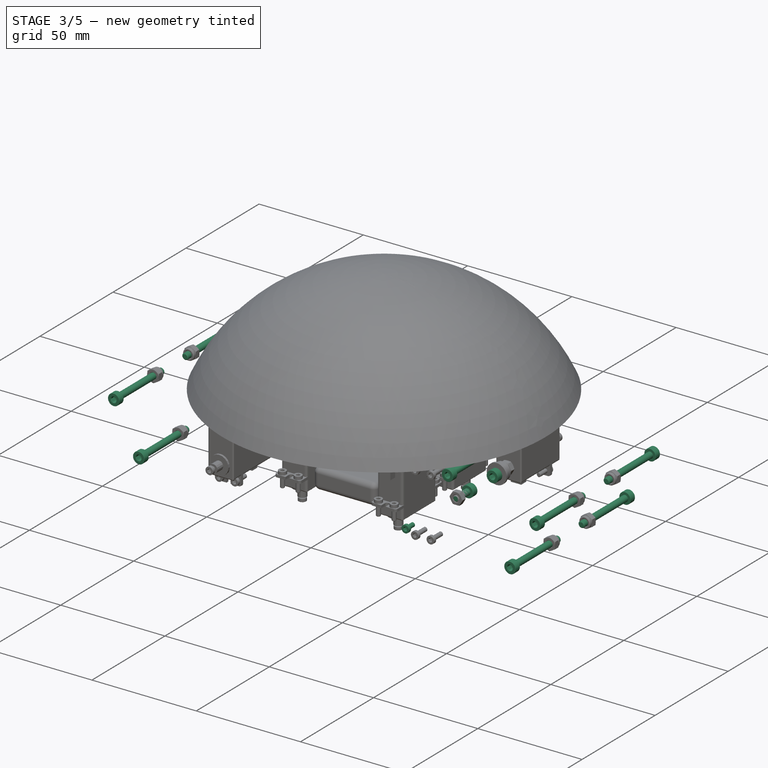
[diagram: stage 3 of 5 — iso view after this stage's code; geometry added in this stage tinted green]
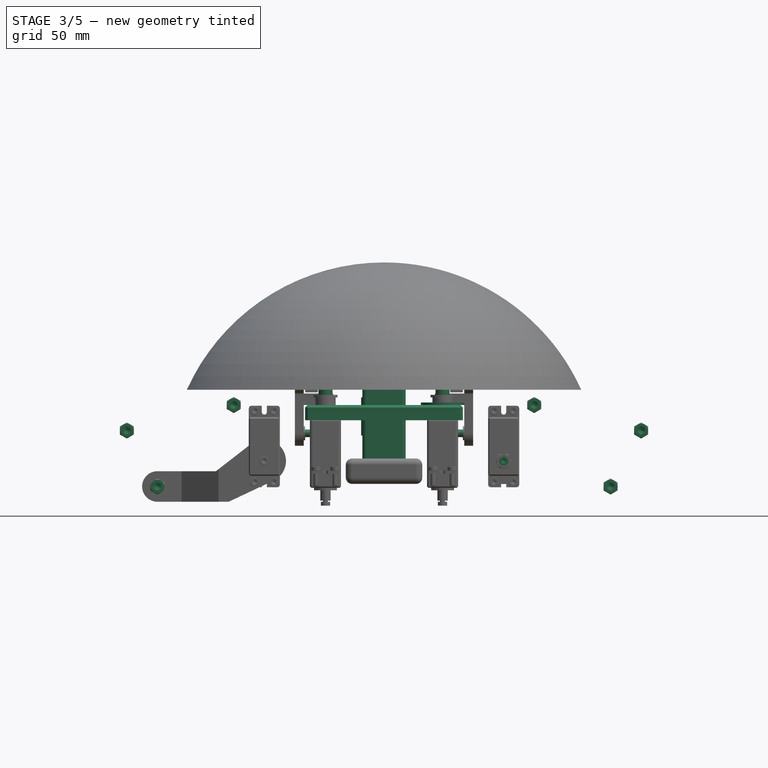
[diagram: stage 3 of 5 — front view after this stage's code; geometry added in this stage tinted green]
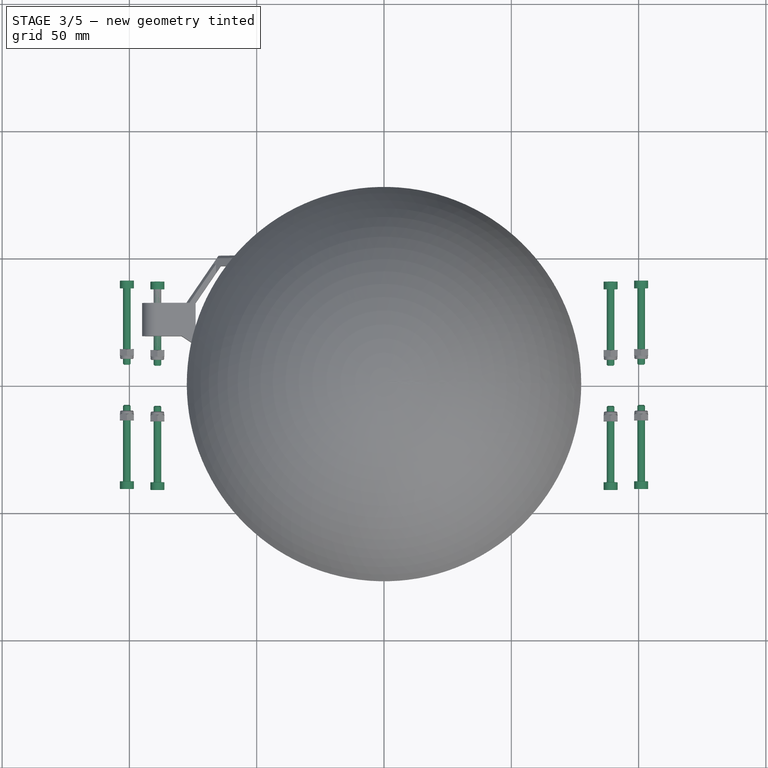
[diagram: stage 3 of 5 — top view after this stage's code; geometry added in this stage tinted green]
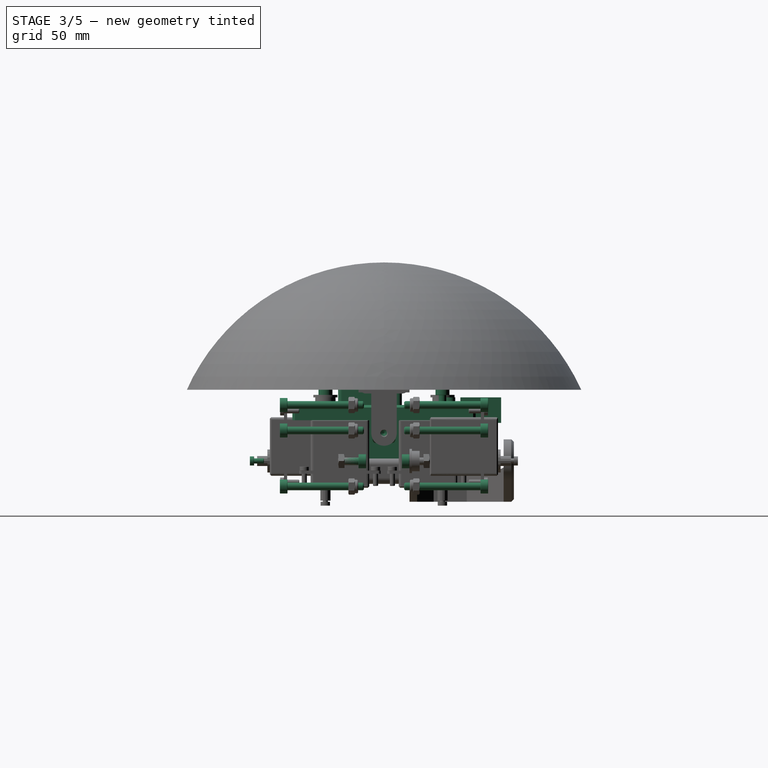
[diagram: stage 3 of 5 — right view after this stage's code; geometry added in this stage tinted green]
FEATURE [Part::Box] Box009  label="Cubo009"
  Height = 6
  Length = 62
  Placement = pos=(-31,-36,23) rot=(0,0,1;0rad)
  Width = 72
FEATURE [Part::Chamfer] Chamfer001
  Base = -> Box009
  Edges = 8 edges r=1: [Edge1,Edge2,Edge3,Edge5,Edge6,Edge7,Edge10,Edge12]
FEATURE [Sketcher::SketchObject] Sketch001
  Placement = pos=(0,0,23) rot=(1,0,0;3.14159rad)
  sketch-geometry (4):
    g0: LineSegment StartX=-29 StartY=34 StartZ=0 EndX=29 EndY=34 EndZ=0
    g1: LineSegment StartX=29 StartY=34 StartZ=0 EndX=29 EndY=-34 EndZ=0
    g2: LineSegment StartX=29 StartY=-34 StartZ=0 EndX=-29 EndY=-34 EndZ=0
    g3: LineSegment StartX=-29 StartY=-34 StartZ=0 EndX=-29 EndY=34 EndZ=0
  constraints (12):
    c: Coincident(g0,g1)
    c: Coincident(g1,g2)
    c: Coincident(g2,g3)
    c: Coincident(g3,g0)
    c: Horizontal(g0)
    c: Horizontal(g2)
    c: Vertical(g1)
    c: Vertical(g3)
    c: Symmetric(g2,g1,g-2)
    c: Symmetric(g0,g2,g-1)
    c: Distance(g3) = 68
    c: Distance(g2) = 58
FEATURE [PartDesign::Pad] Pad001
  Length = 2
  Length2 = 100
  Placement = pos=(0,0,23) rot=(1,0,0;3.14159rad)
  Reversed = true
  Sketch = -> Sketch001
  Type = 0
FEATURE [Sketcher::SketchObject] Sketch002
  Placement = pos=(0,0,23) rot=(1,0,0;3.14159rad)
  sketch-geometry (4):
    g0: LineSegment StartX=-16.5 StartY=34 StartZ=0 EndX=16.5 EndY=34 EndZ=0
    g1: LineSegment StartX=16.5 StartY=34 StartZ=0 EndX=16.5 EndY=-34 EndZ=0
    g2: LineSegment StartX=16.5 StartY=-34 StartZ=0 EndX=-16.5 EndY=-34 EndZ=0
    g3: LineSegment StartX=-16.5 StartY=-34 StartZ=0 EndX=-16.5 EndY=34 EndZ=0
  constraints (12):
    c: Coincident(g0,g1)
    c: Coincident(g1,g2)
    c: Coincident(g2,g3)
    c: Coincident(g3,g0)
    c: Horizontal(g0)
    c: Horizontal(g2)
    c: Vertical(g1)
    c: Vertical(g3)
    c: Symmetric(g2,g1,g-2)
    c: Symmetric(g0,g2,g-1)
    c: Distance(g3) = 68
    c: Distance(g2) = 33
FEATURE [PartDesign::Pad] Pad002
  Length = 6
  Length2 = 100
  Placement = pos=(0,0,23) rot=(1,0,0;3.14159rad)
  Reversed = true
  Sketch = -> Sketch002
  Type = 0
FEATURE [Part::MultiFuse] Fusion003
  Placement = pos=(0,0,-1) rot=(0,0,1;0rad)
  Shapes = -> [Pad002,Pad001]
FEATURE [Part::Cut] Cut004
  Base = -> Chamfer001
  Tool = -> Fusion003
FEATURE [Part::Prism] Prism004  label="Prisma004"
  Circumradius = 3.1
  Height = 10
  Placement = pos=(-23,23,0) rot=(0,0,1;0rad)
  Polygon = 6
FEATURE [Part::Prism] Prism005  label="Prisma005"
  Circumradius = 3.1
  Height = 10
  Placement = pos=(23,23,0) rot=(0,0,1;0rad)
  Polygon = 6
FEATURE [Part::Prism] Prism006  label="Prisma006"
  Circumradius = 3.1
  Height = 10
  Placement = pos=(-23,-23,0) rot=(0,0,1;0rad)
  Polygon = 6
FEATURE [Part::Prism] Prism007  label="Prisma007"
  Circumradius = 3.1
  Height = 10
  Placement = pos=(23,-23,0) rot=(0,0,1;0rad)
  Polygon = 6
FEATURE [Part::MultiFuse] Fusion004
  Placement = pos=(0,0,17) rot=(0,0,1;0rad)
  Shapes = -> [Prism007,Prism004,Prism005,Prism006]
FEATURE [Sketcher::SketchObject] Sketch018
  Placement = pos=(0,0,40) rot=(0,0,1;0rad)
  sketch-geometry (8):
    g0: LineSegment StartX=-7 StartY=7 StartZ=0 EndX=7 EndY=7 EndZ=0
    g1: LineSegment StartX=8.5 StartY=5.5 StartZ=0 EndX=8.5 EndY=-16.5 EndZ=0
    g2: LineSegment StartX=7 StartY=-18 StartZ=0 EndX=-7 EndY=-18 EndZ=0
    g3: LineSegment StartX=-8.5 StartY=-16.5 StartZ=0 EndX=-8.5 EndY=5.5 EndZ=0
    g4: ArcOfCircle CenterX=-7 CenterY=-16.5 CenterZ=0 NormalX=0 NormalY=0 NormalZ=1 Radius=1.5 StartAngle=3.14159 EndAngle=4.71239
    g5: ArcOfCircle CenterX=-7 CenterY=5.5 CenterZ=0 NormalX=0 NormalY=0 NormalZ=1 Radius=1.5 StartAngle=1.5708 EndAngle=3.14159
    g6: ArcOfCircle CenterX=7 CenterY=5.5 CenterZ=0 NormalX=0 NormalY=0 NormalZ=1 Radius=1.5 StartAngle=0 EndAngle=1.5708
    g7: ArcOfCircle CenterX=7 CenterY=-16.5 CenterZ=0 NormalX=0 NormalY=0 NormalZ=1 Radius=1.5 StartAngle=4.71239 EndAngle=6.28319
  constraints (19):
    c: Horizontal(g0)
    c: Horizontal(g2)
    c: Vertical(g1)
    c: Vertical(g3)
    c: Tangent(g3,g4) = 1.5708
    c: Tangent(g2,g4) = 1.5708
    c: Tangent(g3,g5) = 1.5708
    c: Tangent(g0,g5) = 1.5708
    c: Tangent(g0,g6) = 1.5708
    c: Tangent(g1,g6) = 1.5708
    c: Tangent(g2,g7) = 1.5708
    c: Tangent(g1,g7) = 1.5708
    c: DistanceY(g-1,g0) = 7
    c: DistanceY(g0,g2) = -25
    c: DistanceX(g3,g1) = 17
    c: Symmetric(g3,g1,g-2)
    c: Equal(g0,g2)
    c: Equal(g3,g1)
    c: Radius(g5) = 1.5
FEATURE [PartDesign::Pad] Pad021
  Length = 35
  Length2 = 100
  Placement = pos=(0,0,40) rot=(0,0,1;0rad)
  Reversed = true
  Sketch = -> Sketch018
  Type = 0
FEATURE [Part::Box] Box012  label="Cubo012"
  Height = 10
  Length = 12
  Placement = pos=(-6,30,22) rot=(0,0,1;0rad)
  Width = 16
FEATURE [Part::Box] Box013  label="Cubo013"
  Height = 11
  Length = 6
  Placement = pos=(-28.75,-4.5,14) rot=(0,0,1;0rad)
  Width = 9
FEATURE [Part::Cylinder] Cylinder019  label="Cilindro016"
  Angle = 360
  Height = 68
  Placement = pos=(-34,0,18) rot=(0,1,0;1.5708rad)
  Radius = 1.75
FEATURE [Part::Cut] Cut028
  Base = -> Box013
  Tool = -> Cylinder019
FEATURE [Part::Chamfer] Chamfer008
  Base = -> Cut028
  Edges = 1 edges r=1.5: [Edge3]
FEATURE [Part::Fillet] Fillet009
  Base = -> Chamfer008
  Edges = 2 edges r=1.5: [Edge6,Edge14]
FEATURE [Part::Prism] Prism010  label="Prisma010"
  Circumradius = 3.25
  Height = 10
  Placement = pos=(-17.5,0,18) rot=(-0.250563,-0.935113,0.250563;1.63783rad)
  Polygon = 6
FEATURE [Part::Cut] Cut029
  Base = -> Fillet009
  Tool = -> Prism010
FEATURE [Part::Box] Box014  label="Cubo014"
  Height = 3
  Length = 4
  Placement = pos=(-29.75,-4.5,23) rot=(0,0,1;0rad)
  Width = 9
FEATURE [Part::MultiFuse] Fusion016
  Shapes = -> [Cut029,Box014]
FEATURE [Part::Mirroring] Part__Mirroring032  label="Fusion016 (Mirror #31)"
  Base = (0,0,0)
  Normal = (1,0,0)
  Source = -> Fusion016
FEATURE [Part::MultiFuse] Fusion017
  Shapes = -> [Fusion016,Part__Mirroring032]
FEATURE [Part::Cylinder] Cylinder021  label="Cilindro017"
  Angle = 360
  Height = 15
  Placement = pos=(-7,26,17) rot=(0,0,1;0rad)
  Radius = 2
FEATURE [App::DocumentObjectGroup] Grupo008  label="chassis"
  Group = -> [Clone015,Clone020]
FEATURE [Sketcher::SketchObject] Sketch021
  Placement = pos=(0,0,29) rot=(0,0,1;0rad)
  sketch-geometry (2):
    g0: Circle CenterX=-23 CenterY=23 CenterZ=0 NormalX=0 NormalY=0 NormalZ=1 Radius=4.5
    g1: Circle CenterX=-23 CenterY=23 CenterZ=0 NormalX=0 NormalY=0 NormalZ=1 Radius=8.5
  constraints (5):
    c: Radius(g0) = 4.5
    c: Coincident(g1,g0)
    c: Radius(g1) = 8.5
    c: DistanceY(g-1,g0) = 23
    c: DistanceX(g-1,g0) = -23
FEATURE [PartDesign::Pad] Pad023  label="spacer"
  Length = 1
  Length2 = 100
  Placement = pos=(0,0,29) rot=(0,0,1;0rad)
  Sketch = -> Sketch021
  Type = 0
FEATURE [Part::FeaturePython] Clone021  label="Clone of spacer"  # Draft clone (typed FeaturePython)
  Objects = -> [Pad023]
  Placement = pos=(0,0,29) rot=(0,0,1;0rad)
  Scale = (1,1,1)
FEATURE [Part::Mirroring] Part__Mirroring042  label="Clone of spacer (Mirror #38)"
  Base = (0,0,0)
  Normal = (0,1,0)
  Source = -> Clone021
FEATURE [Part::Mirroring] Part__Mirroring043  label="Clone of spacer (Mirror #39)"
  Base = (0,0,0)
  Normal = (1,0,0)
  Source = -> Clone021
FEATURE [Part::Mirroring] Part__Mirroring044  label="Clone of spacer (Mirror #40)"
  Base = (0,0,0)
  Normal = (1,0,0)
  Source = -> Part__Mirroring042
FEATURE [Part::Feature] Part__Feature003  label="m3-nut"
  Placement = pos=(0,0,0) rot=(0,0,1;0.523599rad)
  shape: bbox 6.35 x 6.35 x 2.4 mm, 29 faces (baked)
FEATURE [Part::Feature] Part__Feature004  label="hex-bolt"
  shape: bbox 5.5 x 5.5 x 13 mm, 16 faces (baked)
FEATURE [Part::Feature] Fusion022  label="hex-m3-30mm"
  shape: bbox 5.5 x 5.5 x 33 mm, 16 faces (baked)
FEATURE [Part::Feature] Chamfer010  label="hex-m3-8mm"
  Placement = pos=(160,0,0) rot=(0,0,1;0rad)
  shape: bbox 5.5 x 5.5 x 11 mm, 16 faces (baked)
FEATURE [Part::Feature] Chamfer013  label="hex-m2-4mm"
  shape: bbox 5.445 x 6.287 x 6.3 mm, 16 faces (baked)
FEATURE [Part::FeaturePython] Clone022  label="Clone of hex-m3-8mm"  # Draft clone (typed FeaturePython)
  Objects = -> [Chamfer010]
  Placement = pos=(23,-23,32.9) rot=(0,0,1;0rad)
  Scale = (1,1,1)
FEATURE [Part::FeaturePython] Clone023  label="Clone of hex-m3-8mm001"  # Draft clone (typed FeaturePython)
  Objects = -> [Chamfer010]
  Placement = pos=(-47,-10,6.9) rot=(-1,0,0;1.5708rad)
  Scale = (1,1,1)
FEATURE [Part::FeaturePython] Clone024  label="Clone of hex-m3-8mm002"  # Draft clone (typed FeaturePython)
  Objects = -> [Chamfer010]
  Placement = pos=(-23,23,32.9) rot=(0,0,1;0rad)
  Scale = (1,1,1)
FEATURE [Part::FeaturePython] Clone025  label="Clone of hex-m3-8mm003"  # Draft clone (typed FeaturePython)
  Objects = -> [Chamfer010]
  Placement = pos=(-31,0,17.9) rot=(0,-1,0;1.5708rad)
  Scale = (1,1,1)
FEATURE [Part::FeaturePython] Clone026  label="Clone of hex-m3-8mm004"  # Draft clone (typed FeaturePython)
  Objects = -> [Chamfer010]
  Placement = pos=(31,0,17.9) rot=(0,1,0;1.5708rad)
  Scale = (1,1,1)
FEATURE [Part::FeaturePython] Clone027  label="Clone of hex-m3-8mm005"  # Draft clone (typed FeaturePython)
  Objects = -> [Chamfer010]
  Placement = pos=(47,10,6.9) rot=(1,0,0;1.5708rad)
  Scale = (1,1,1)
FEATURE [Part::FeaturePython] Clone028  label="Clone of hex-m3-8mm006"  # Draft clone (typed FeaturePython)
  Objects = -> [Chamfer010]
  Placement = pos=(-47,10,6.9) rot=(1,0,0;1.5708rad)
  Scale = (1,1,1)
FEATURE [Part::FeaturePython] Clone029  label="Clone of hex-m3-8mm007"  # Draft clone (typed FeaturePython)
  Objects = -> [Chamfer010]
  Placement = pos=(23,23,32.9) rot=(0,0,1;0rad)
  Scale = (1,1,1)
FEATURE [Part::FeaturePython] Clone030  label="Clone of hex-m3-8mm008"  # Draft clone (typed FeaturePython)
  Objects = -> [Chamfer010]
  Placement = pos=(47,-10,6.9) rot=(-1,0,0;1.5708rad)
  Scale = (1,1,1)
FEATURE [Part::FeaturePython] Clone031  label="Clone of hex-m3-8mm009"  # Draft clone (typed FeaturePython)
  Objects = -> [Chamfer010]
  Placement = pos=(-23,-23,32.9) rot=(0,0,1;0rad)
  Scale = (1,1,1)
FEATURE [Part::FeaturePython] Clone032  label="Clone of hex-m3-30mm"  # Draft clone (typed FeaturePython)
  Objects = -> [Fusion022]
  Placement = pos=(-89,-37.9,-3) rot=(1,0,0;1.5708rad)
  Scale = (1,1,1)
FEATURE [Part::FeaturePython] Clone033  label="Clone of hex-m3-30mm001"  # Draft clone (typed FeaturePython)
  Objects = -> [Fusion022]
  Placement = pos=(101,37.9,19) rot=(-1,0,0;1.5708rad)
  Scale = (1,1,1)
FEATURE [Part::FeaturePython] Clone034  label="Clone of hex-m3-30mm002"  # Draft clone (typed FeaturePython)
  Objects = -> [Fusion022]
  Placement = pos=(-101,-37.9,19) rot=(1,0,0;1.5708rad)
  Scale = (1,1,1)
FEATURE [Part::FeaturePython] Clone035  label="Clone of hex-m3-30mm003"  # Draft clone (typed FeaturePython)
  Objects = -> [Fusion022]
  Placement = pos=(-89,37.9,-3) rot=(-1,0,0;1.5708rad)
  Scale = (1,1,1)
FEATURE [Part::FeaturePython] Clone036  label="Clone of hex-m3-30mm004"  # Draft clone (typed FeaturePython)
  Objects = -> [Fusion022]
  Placement = pos=(-59,-37.9,29) rot=(1,0,0;1.5708rad)
  Scale = (1,1,1)
FEATURE [Part::FeaturePython] Clone037  label="Clone of hex-m3-30mm005"  # Draft clone (typed FeaturePython)
  Objects = -> [Fusion022]
  Placement = pos=(-59,37.9,29) rot=(-1,0,0;1.5708rad)
  Scale = (1,1,1)
FEATURE [Part::FeaturePython] Clone038  label="Clone of hex-m3-30mm006"  # Draft clone (typed FeaturePython)
  Objects = -> [Fusion022]
  Placement = pos=(59,37.9,29) rot=(-1,0,0;1.5708rad)
  Scale = (1,1,1)
FEATURE [Part::FeaturePython] Clone039  label="Clone of hex-m3-30mm007"  # Draft clone (typed FeaturePython)
  Objects = -> [Fusion022]
  Placement = pos=(89,-37.9,-3) rot=(1,0,0;1.5708rad)
  Scale = (1,1,1)
FEATURE [Part::FeaturePython] Clone040  label="Clone of hex-m3-30mm008"  # Draft clone (typed FeaturePython)
  Objects = -> [Fusion022]
  Placement = pos=(89,37.9,-3) rot=(-1,0,0;1.5708rad)
  Scale = (1,1,1)
FEATURE [Part::FeaturePython] Clone041  label="Clone of hex-m3-30mm009"  # Draft clone (typed FeaturePython)
  Objects = -> [Fusion022]
  Placement = pos=(101,-37.9,19) rot=(1,0,0;1.5708rad)
  Scale = (1,1,1)
FEATURE [Part::FeaturePython] Clone042  label="Clone of hex-m3-30mm010"  # Draft clone (typed FeaturePython)
  Objects = -> [Fusion022]
  Placement = pos=(59,-37.9,29) rot=(1,0,0;1.5708rad)
  Scale = (1,1,1)
FEATURE [Part::FeaturePython] Clone043  label="Clone of hex-m3-30mm011"  # Draft clone (typed FeaturePython)
  Objects = -> [Fusion022]
  Placement = pos=(-101,37.9,19) rot=(-1,0,0;1.5708rad)
  Scale = (1,1,1)
FEATURE [Part::FeaturePython] Clone044  label="Clone of hex-m2-4mm"  # Draft clone (typed FeaturePython)
  Objects = -> [Chamfer013]
  Placement = pos=(47.0481,-51.1815,7.03289) rot=(1,0,0;1.5708rad)
  Scale = (1,1,1)
FEATURE [Part::FeaturePython] Clone088  label="Clone of hex-m2-6mm025"  # Draft clone (typed FeaturePython)
  Objects = -> [Chamfer018]
  Placement = pos=(-50.75,39.3,26.7) rot=(0,0.707107,0.707107;3.14159rad)
  Scale = (1,1,1)
FEATURE [Part::FeaturePython] Clone089  label="Clone of hex-m2-6mm026"  # Draft clone (typed FeaturePython)
  Objects = -> [Chamfer018]
  Placement = pos=(-43.25,39.3,26.7) rot=(0,0.707107,0.707107;3.14159rad)
  Scale = (1,1,1)
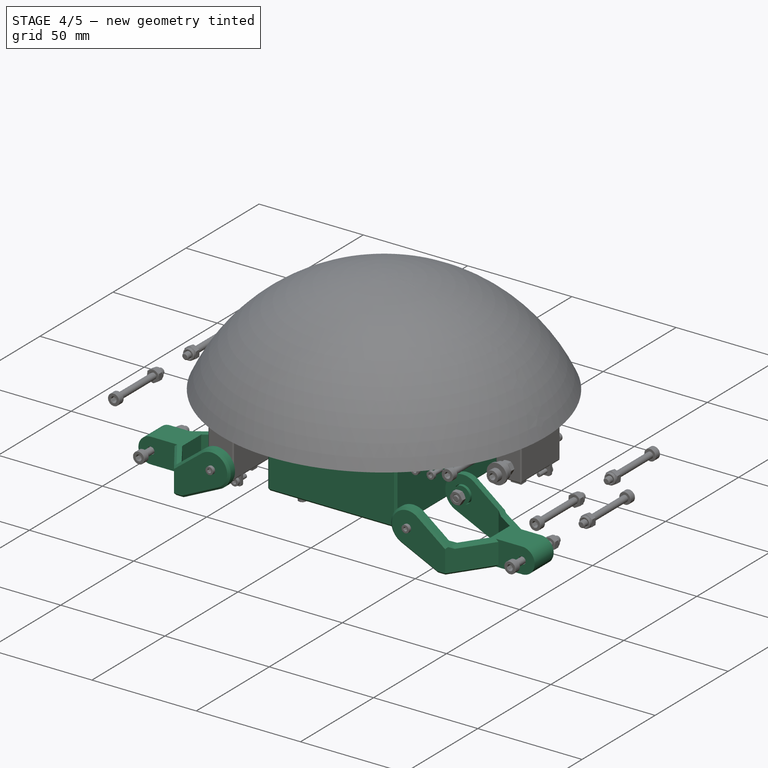
[diagram: stage 4 of 5 — iso view after this stage's code; geometry added in this stage tinted green]
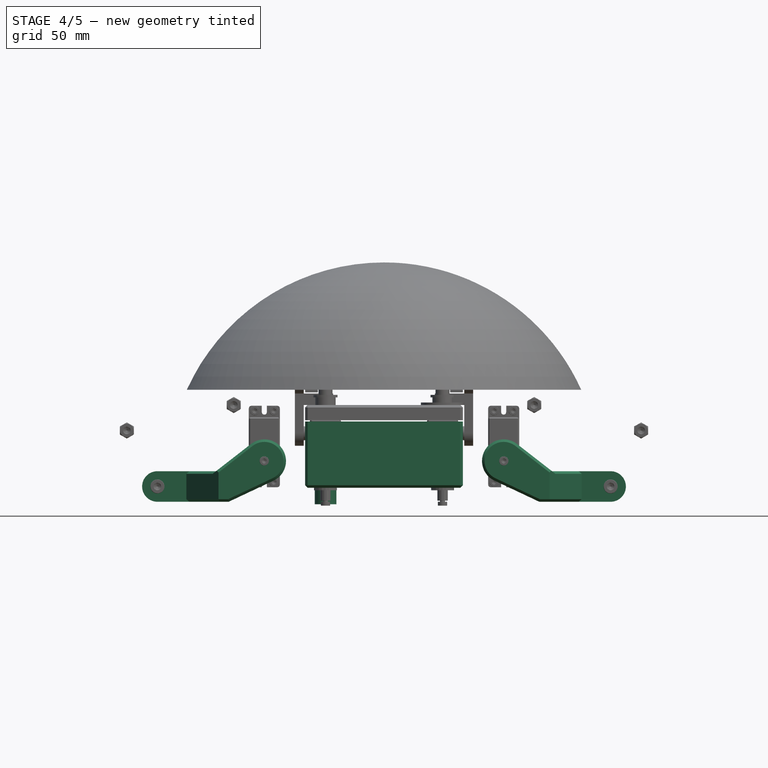
[diagram: stage 4 of 5 — front view after this stage's code; geometry added in this stage tinted green]
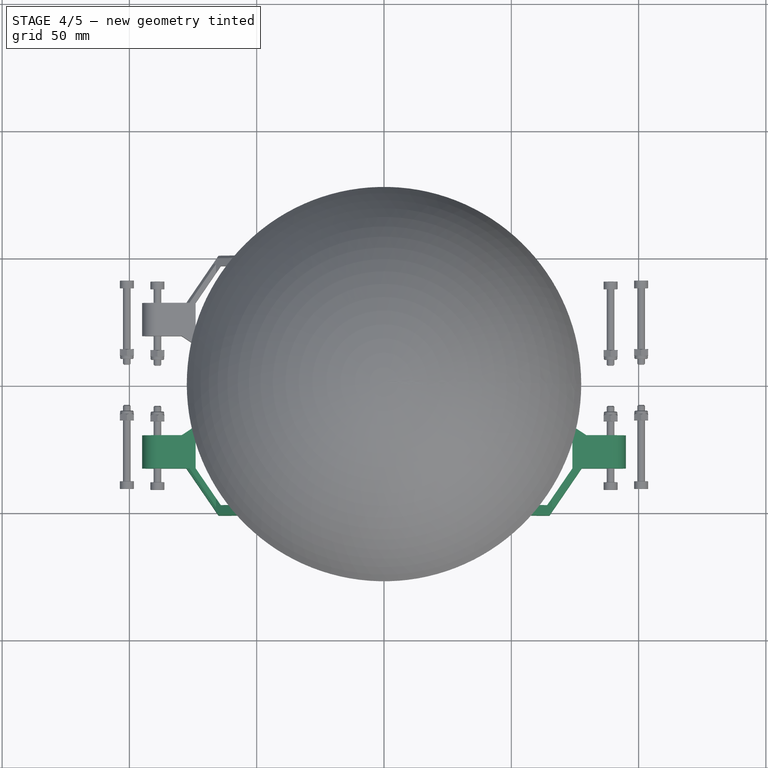
[diagram: stage 4 of 5 — top view after this stage's code; geometry added in this stage tinted green]
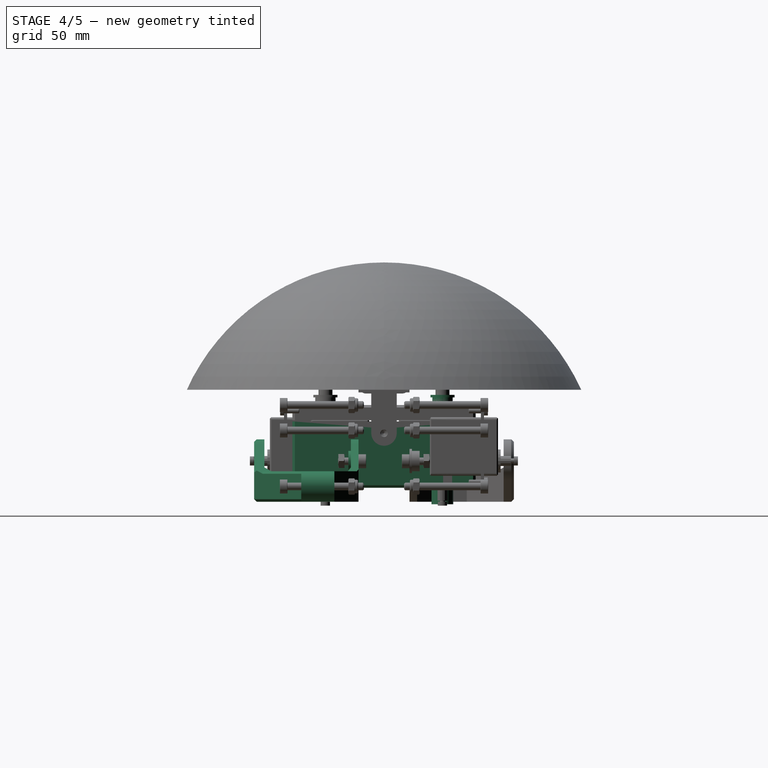
[diagram: stage 4 of 5 — right view after this stage's code; geometry added in this stage tinted green]
FEATURE [Part::Box] Box001  label="Cubo001"
  Height = 26
  Length = 62
  Placement = pos=(-31,-36,-3.5) rot=(0,0,1;0rad)
  Width = 72
FEATURE [Part::Feature] Part__Feature  label="final-can"
  Placement = pos=(-159,0,-21) rot=(0,0,1;0rad)
  shape: bbox 66.1 x 66.1 x 115.2 mm, 53 faces (baked)
FEATURE [Sketcher::SketchObject] Sketch
  Placement = pos=(0,0,-10) rot=(1,0,0;3.14159rad)
  sketch-geometry (56):
    g0: LineSegment StartX=-29.5 StartY=29 StartZ=0 EndX=-16.5 EndY=29 EndZ=0
    g1: LineSegment StartX=-16.5 StartY=29 StartZ=0 EndX=-16.5 EndY=5.5 EndZ=0
    g2: LineSegment StartX=-16.5 StartY=5.5 StartZ=0 EndX=-29.5 EndY=5.5 EndZ=0
    g3: LineSegment StartX=-29.5 StartY=5.5 StartZ=0 EndX=-29.5 EndY=29 EndZ=0
    g4: LineSegment StartX=16.5 StartY=29 StartZ=0 EndX=29.5 EndY=29 EndZ=0
    g5: LineSegment StartX=29.5 StartY=29 StartZ=0 EndX=29.5 EndY=5.5 EndZ=0
    g6: LineSegment StartX=29.5 StartY=5.5 StartZ=0 EndX=16.5 EndY=5.5 EndZ=0
    g7: LineSegment StartX=16.5 StartY=5.5 StartZ=0 EndX=16.5 EndY=29 EndZ=0
    g8: LineSegment StartX=-29.5 StartY=-5.5 StartZ=0 EndX=-16.5 EndY=-5.5 EndZ=0
    g9: LineSegment StartX=-16.5 StartY=-5.5 StartZ=0 EndX=-16.5 EndY=-29 EndZ=0
    g10: LineSegment StartX=-16.5 StartY=-29 StartZ=0 EndX=-29.5 EndY=-29 EndZ=0
    g11: LineSegment StartX=-29.5 StartY=-29 StartZ=0 EndX=-29.5 EndY=-5.5 EndZ=0
    g12: LineSegment StartX=16.5 StartY=-5.5 StartZ=0 EndX=29.5 EndY=-5.5 EndZ=0
    g13: LineSegment StartX=29.5 StartY=-5.5 StartZ=0 EndX=29.5 EndY=-29 EndZ=0
    g14: LineSegment StartX=29.5 StartY=-29 StartZ=0 EndX=16.5 EndY=-29 EndZ=0
    g15: LineSegment StartX=16.5 StartY=-29 StartZ=0 EndX=16.5 EndY=-5.5 EndZ=0
    g16: Circle CenterX=-26.75 CenterY=31.25 CenterZ=0 NormalX=0 NormalY=0 NormalZ=1 Radius=1
    g17: Circle CenterX=-19.25 CenterY=31.25 CenterZ=0 NormalX=0 NormalY=0 NormalZ=1 Radius=1
    g18: Circle CenterX=-26.75 CenterY=3.25 CenterZ=0 NormalX=0 NormalY=0 NormalZ=1 Radius=1
    g19: Circle CenterX=-19.25 CenterY=3.25 CenterZ=0 NormalX=0 NormalY=0 NormalZ=1 Radius=1
    g20: Circle CenterX=-26.75 CenterY=-3.25 CenterZ=0 NormalX=0 NormalY=0 NormalZ=1 Radius=1
    g21: Circle CenterX=-19.25 CenterY=-3.25 CenterZ=0 NormalX=0 NormalY=0 NormalZ=1 Radius=1
    g22: Circle CenterX=-26.75 CenterY=-31.25 CenterZ=0 NormalX=0 NormalY=0 NormalZ=1 Radius=1
    g23: Circle CenterX=-19.25 CenterY=-31.25 CenterZ=0 NormalX=0 NormalY=0 NormalZ=1 Radius=1
    g24: Circle CenterX=19.25 CenterY=31.25 CenterZ=0 NormalX=0 NormalY=0 NormalZ=1 Radius=1
    g25: Circle CenterX=26.75 CenterY=31.25 CenterZ=0 NormalX=0 NormalY=0 NormalZ=1 Radius=1
    g26: Circle CenterX=19.25 CenterY=3.25 CenterZ=0 NormalX=0 NormalY=0 NormalZ=1 Radius=1
    g27: Circle CenterX=26.75 CenterY=3.25 CenterZ=0 NormalX=0 NormalY=0 NormalZ=1 Radius=1
    g28: Circle CenterX=19.25 CenterY=-3.25 CenterZ=0 NormalX=0 NormalY=0 NormalZ=1 Radius=1
    g29: Circle CenterX=26.75 CenterY=-3.25 CenterZ=0 NormalX=0 NormalY=0 NormalZ=1 Radius=1
    g30: Circle CenterX=19.25 CenterY=-31.25 CenterZ=0 NormalX=0 NormalY=0 NormalZ=1 Radius=1
    g31: Circle CenterX=26.75 CenterY=-31.25 CenterZ=0 NormalX=0 NormalY=0 NormalZ=1 Radius=1
    g32: LineSegment [constr] StartX=-29.5 StartY=29 StartZ=0 EndX=-26.75 EndY=31.25 EndZ=0
    g33: LineSegment [constr] StartX=-26.75 StartY=31.25 StartZ=0 EndX=-19.25 EndY=31.25 EndZ=0
    g34: LineSegment [constr] StartX=-19.25 StartY=31.25 StartZ=0 EndX=-16.5 EndY=29 EndZ=0
    g35: LineSegment [constr] StartX=-29.5 StartY=5.5 StartZ=0 EndX=-26.75 EndY=3.25 EndZ=0
    g36: LineSegment [constr] StartX=-26.75 StartY=3.25 StartZ=0 EndX=-19.25 EndY=3.25 EndZ=0
    g37: LineSegment [constr] StartX=-19.25 StartY=3.25 StartZ=0 EndX=-16.5 EndY=5.5 EndZ=0
    g38: LineSegment [constr] StartX=-29.5 StartY=-5.5 StartZ=0 EndX=-26.75 EndY=-3.25 EndZ=0
    g39: LineSegment [constr] StartX=-26.75 StartY=-3.25 StartZ=0 EndX=-19.25 EndY=-3.25 EndZ=0
    g40: LineSegment [constr] StartX=-19.25 StartY=-3.25 StartZ=0 EndX=-16.5 EndY=-5.5 EndZ=0
    g41: LineSegment [constr] StartX=-29.5 StartY=-29 StartZ=0 EndX=-26.75 EndY=-31.25 EndZ=0
    g42: LineSegment [constr] StartX=-26.75 StartY=-31.25 StartZ=0 EndX=-19.25 EndY=-31.25 EndZ=0
    g43: LineSegment [constr] StartX=-19.25 StartY=-31.25 StartZ=0 EndX=-16.5 EndY=-29 EndZ=0
    g44: LineSegment [constr] StartX=16.5 StartY=-29 StartZ=0 EndX=19.25 EndY=-31.25 EndZ=0
    g45: LineSegment [constr] StartX=19.25 StartY=-31.25 StartZ=0 EndX=26.75 EndY=-31.25 EndZ=0
    g46: LineSegment [constr] StartX=26.75 StartY=-31.25 StartZ=0 EndX=29.5 EndY=-29 EndZ=0
    g47: LineSegment [constr] StartX=16.5 StartY=-5.5 StartZ=0 EndX=19.25 EndY=-3.25 EndZ=0
    g48: LineSegment [constr] StartX=19.25 StartY=-3.25 StartZ=0 EndX=26.75 EndY=-3.25 EndZ=0
    g49: LineSegment [constr] StartX=26.75 StartY=-3.25 StartZ=0 EndX=29.5 EndY=-5.5 EndZ=0
    g50: LineSegment [constr] StartX=16.5 StartY=5.5 StartZ=0 EndX=19.25 EndY=3.25 EndZ=0
    g51: LineSegment [constr] StartX=19.25 StartY=3.25 StartZ=0 EndX=26.75 EndY=3.25 EndZ=0
    g52: LineSegment [constr] StartX=26.75 StartY=3.25 StartZ=0 EndX=29.5 EndY=5.5 EndZ=0
    g53: LineSegment [constr] StartX=16.5 StartY=29 StartZ=0 EndX=19.25 EndY=31.25 EndZ=0
    g54: LineSegment [constr] StartX=19.25 StartY=31.25 StartZ=0 EndX=26.75 EndY=31.25 EndZ=0
    g55: LineSegment [constr] StartX=26.75 StartY=31.25 StartZ=0 EndX=29.5 EndY=29 EndZ=0
  constraints (138):
    c: Coincident(g0,g1)
    c: Coincident(g1,g2)
    c: Coincident(g2,g3)
    c: Coincident(g3,g0)
    c: Horizontal(g0)
    c: Horizontal(g2)
    c: Vertical(g1)
    c: Vertical(g3)
    c: Coincident(g4,g5)
    c: Coincident(g5,g6)
    c: Coincident(g6,g7)
    c: Coincident(g7,g4)
    c: Horizontal(g4)
    c: Horizontal(g6)
    c: Vertical(g5)
    c: Vertical(g7)
    c: Coincident(g8,g9)
    c: Coincident(g9,g10)
    c: Coincident(g10,g11)
    c: Coincident(g11,g8)
    c: Horizontal(g8)
    c: Horizontal(g10)
    c: Vertical(g9)
    c: Vertical(g11)
    c: Coincident(g12,g13)
    c: Coincident(g13,g14)
    c: Coincident(g14,g15)
    c: Coincident(g15,g12)
    c: Horizontal(g12)
    c: Horizontal(g14)
    c: Vertical(g13)
    c: Vertical(g15)
    c: Equal(g0,g4)
    c: Equal(g4,g8)
    c: Equal(g8,g12)
    c: Equal(g3,g7)
    c: Equal(g7,g11)
    c: Equal(g11,g15)
    c: Symmetric(g8,g1,g-1)
    c: Symmetric(g6,g12,g-1)
    c: Symmetric(g1,g6,g-2)
    c: Coincident(g0,g32)
    c: Coincident(g32,g16)
    c: Coincident(g32,g33)
    c: Coincident(g33,g17)
    c: Horizontal(g33)
    c: Coincident(g33,g34)
    c: Coincident(g34,g0)
    c: Coincident(g2,g35)
    c: Coincident(g35,g18)
    c: Coincident(g35,g36)
    c: Coincident(g36,g19)
    c: Horizontal(g36)
    c: Coincident(g36,g37)
    c: Coincident(g37,g1)
    c: Coincident(g8,g38)
    c: Coincident(g38,g20)
    c: Coincident(g38,g39)
    c: Coincident(g39,g21)
    c: Horizontal(g39)
    c: Coincident(g39,g40)
    c: Coincident(g40,g8)
    c: Coincident(g41,g10)
    c: Coincident(g41,g22)
    c: Coincident(g42,g22)
    c: Coincident(g42,g23)
    c: Horizontal(g42)
    c: Coincident(g42,g43)
    c: Coincident(g43,g9)
    c: Coincident(g14,g44)
    c: Coincident(g44,g30)
    c: Coincident(g44,g45)
    c: Coincident(g45,g31)
    c: Horizontal(g45)
    c: Coincident(g45,g46)
    c: Coincident(g46,g13)
    c: Coincident(g12,g47)
    c: Coincident(g47,g28)
    c: Coincident(g47,g48)
    c: Coincident(g48,g29)
    c: Horizontal(g48)
    c: Coincident(g48,g49)
    c: Coincident(g49,g12)
    c: Coincident(g6,g50)
    c: Coincident(g50,g26)
    c: Coincident(g50,g51)
    c: Coincident(g51,g27)
    c: Horizontal(g51)
    c: Coincident(g51,g52)
    c: Coincident(g52,g5)
    c: Coincident(g4,g53)
    c: Coincident(g53,g24)
    c: Coincident(g53,g54)
    c: Coincident(g54,g25)
    c: Horizontal(g54)
    c: Coincident(g54,g55)
    c: Coincident(g55,g4)
    c: Radius(g16) = 1
    c: Equal(g16,g17)
    c: Equal(g16,g24)
    c: Equal(g16,g25)
    c: Equal(g16,g18)
    c: Equal(g16,g19)
    c: Equal(g16,g26)
    c: Equal(g16,g27)
    c: Equal(g16,g29)
    c: Equal(g16,g28)
    c: Equal(g16, g20-g23) x4
    c: Equal(g16,g30)
    c: Equal(g16,g31)
    c: Equal(g36,g39)
    c: Equal(g39,g42)
    c: Equal(g42,g45)
    c: Equal(g45,g48)
    c: Equal(g48,g51)
    c: Equal(g51,g54)
    c: Equal(g54,g33)
    c: Distance(g54) = 7.5
    c: Equal(g32,g34)
    c: Equal(g34,g53)
    c: Equal(g53,g55)
    c: Equal(g55,g35)
    c: Equal(g35,g37)
    c: Equal(g37,g50)
    c: Equal(g50,g52)
    c: Equal(g52,g49)
    c: Equal(g49,g47)
    c: Equal(g47,g44)
    c: Equal(g44,g46)
    c: Equal(g46,g41)
    c: Equal(g41,g43)
    c: Equal(g43,g38)
    c: Equal(g38,g40)
    c: Distance(g3) = 23.5
    c: Distance(g2) = 13
    c: DistanceY(g-1,g1) = 5.5
    c: DistanceX(g-1,g1) = -16.5
    c: DistanceY(g19,g1) = 2.25
FEATURE [PartDesign::Pad] Pad
  Length = 40
  Length2 = 100
  Placement = pos=(0,0,-10) rot=(1,0,0;3.14159rad)
  Reversed = true
  Sketch = -> Sketch
  Type = 0
FEATURE [Part::Box] Box007  label="Cubo007"
  Height = 27
  Length = 58
  Placement = pos=(-29,-34,1.5) rot=(0,0,1;0rad)
  Width = 68
FEATURE [Part::Box] Box008  label="Cubo008"
  Height = 27
  Length = 32
  Placement = pos=(-16,-28.5,-2) rot=(0,0,1;0rad)
  Width = 57
FEATURE [Part::Cut] Cut
  Base = -> Box001
  Tool = -> Box007
FEATURE [Part::Cut] Cut001
  Base = -> Cut
  Tool = -> Pad
FEATURE [Part::Cut] Cut002
  Base = -> Cut001
  Tool = -> Box008
FEATURE [Part::Cylinder] Cylinder001  label="Cilindro001"
  Angle = 360
  Height = 30
  Placement = pos=(13,31.5,-10) rot=(0,0,1;0rad)
  Radius = 1.75
FEATURE [Part::Cylinder] Cylinder002  label="Cilindro002"
  Angle = 360
  Height = 30
  Placement = pos=(-13,-31.5,-10) rot=(0,0,1;0rad)
  Radius = 1.75
FEATURE [Part::Cylinder] Cylinder003  label="Cilindro003"
  Angle = 360
  Height = 30
  Placement = pos=(13,-31.5,-10) rot=(0,0,1;0rad)
  Radius = 1.75
FEATURE [Part::Cylinder] Cylinder004  label="Cilindro004"
  Angle = 360
  Height = 50
  Placement = pos=(-23,23,-15) rot=(0,0,1;0rad)
  Radius = 1.75
FEATURE [Part::Cylinder] Cylinder005  label="Cilindro005"
  Angle = 360
  Height = 50
  Placement = pos=(23,23,-15) rot=(0,0,1;0rad)
  Radius = 1.75
FEATURE [Part::Cylinder] Cylinder006  label="Cilindro006"
  Angle = 360
  Height = 50
  Placement = pos=(-23,-23,-15) rot=(0,0,1;0rad)
  Radius = 1.75
FEATURE [Part::Cylinder] Cylinder007  label="Cilindro007"
  Angle = 360
  Height = 50
  Placement = pos=(23,-23,-15) rot=(0,0,1;0rad)
  Radius = 1.75
FEATURE [Part::MultiFuse] Fusion002
  Shapes = -> [Cylinder004,Cylinder005,Cylinder007,Cylinder006]
FEATURE [Part::Cut] Cut005
  Base = -> Cut004
  Tool = -> Fusion004
FEATURE [Part::Cut] Cut006  label="bod"
  Base = -> Cut005
  Tool = -> Fusion002
FEATURE [Sketcher::SketchObject] Sketch016
  Placement = pos=(23.25,34,-10) rot=(0,0,1;3.22886rad)
  sketch-geometry (5):
    g0: ArcOfCircle [constr] CenterX=47 CenterY=7 CenterZ=0 NormalX=0 NormalY=0 NormalZ=1 Radius=4.25 StartAngle=0.879517 EndAngle=4.17917
    g1: ArcOfCircle [constr] CenterX=62.5488 CenterY=-3.91947 CenterZ=0 NormalX=0 NormalY=0 NormalZ=1 Radius=2.75 StartAngle=4.17917 EndAngle=7.1627
    g2: LineSegment [constr] StartX=49.7095 StartY=10.2743 StartZ=0 EndX=64.302 EndY=-1.80079 EndZ=0
    g3: LineSegment [constr] StartX=44.8397 StartY=3.34 StartZ=0 EndX=61.151 EndY=-6.2877 EndZ=0
    g4: Circle CenterX=47 CenterY=7 CenterZ=0 NormalX=0 NormalY=0 NormalZ=1 Radius=4.25
  constraints (15):
    c: Coincident(g2,g0)
    c: Coincident(g2,g1)
    c: Coincident(g3,g0)
    c: Coincident(g1,g3)
    c: Tangent(g0,g3)
    c: Tangent(g0,g2)
    c: Tangent(g2,g1)
    c: Tangent(g3,g1)
    c: Radius(g0) = 4.25
    c: Radius(g1) = 2.75
    c: Distance(g0,g1) = 19
    c: DistanceY(g-1,g0) = 7
    c: DistanceX(g-1,g0) = 47
    c: Coincident(g4,g0)
    c: Equal(g4,g0)
FEATURE [PartDesign::Pad] Pad015
  Length = 30
  Length2 = 100
  Placement = pos=(23.25,34,-10) rot=(0,0,1;3.22886rad)
  Sketch = -> Sketch016
  Type = 0
FEATURE [Part::Feature] Pad016  label="eye-base"
  Placement = pos=(-11,-36.1,14) rot=(1,0,0;1.5708rad)
  shape: bbox 15 x 0.3 x 15 mm, 3 faces (baked)
FEATURE [Part::Feature] Pad017  label="black-eye"
  Placement = pos=(-11,-36.1,14) rot=(1,0,0;1.5708rad)
  shape: bbox 9.7 x 0.4 x 9.7 mm, 3 faces (baked)
FEATURE [Part::Feature] Fillet004  label="eye-cover"
  Placement = pos=(-11,-36.1,14) rot=(1,0,0;1.5708rad)
  shape: bbox 18.49 x 3.9 x 19.71 mm, 4 faces (baked)
FEATURE [Part::Feature] Pad018  label="eye-base001"
  Placement = pos=(11,-36.1,14) rot=(1,0,0;1.5708rad)
  shape: bbox 15 x 0.3 x 15 mm, 3 faces (baked)
FEATURE [Part::Feature] Pad019  label="black-eye001"
  Placement = pos=(11,-36.1,14) rot=(1,0,0;1.5708rad)
  shape: bbox 9.7 x 0.4 x 9.7 mm, 3 faces (baked)
FEATURE [Part::Feature] Fillet005  label="eye-cover001"
  Placement = pos=(11,-36.1,14) rot=(1,0,0;1.5708rad)
  shape: bbox 18.49 x 3.9 x 19.71 mm, 4 faces (baked)
FEATURE [Sketcher::SketchObject] Sketch017
  Placement = pos=(0,40,0) rot=(0,0.707107,0.707107;3.14159rad)
  sketch-geometry (8):
    g0: LineSegment StartX=-7 StartY=10 StartZ=0 EndX=7 EndY=10 EndZ=0
    g1: LineSegment StartX=8.5 StartY=8.5 StartZ=0 EndX=8.5 EndY=4.5 EndZ=0
    g2: LineSegment StartX=7 StartY=3 StartZ=0 EndX=-7 EndY=3 EndZ=0
    g3: LineSegment StartX=-8.5 StartY=4.5 StartZ=0 EndX=-8.5 EndY=8.5 EndZ=0
    g4: ArcOfCircle CenterX=-7 CenterY=8.5 CenterZ=0 NormalX=0 NormalY=0 NormalZ=1 Radius=1.5 StartAngle=1.5708 EndAngle=3.14159
    g5: ArcOfCircle CenterX=7 CenterY=8.5 CenterZ=0 NormalX=0 NormalY=0 NormalZ=1 Radius=1.5 StartAngle=0 EndAngle=1.5708
    g6: ArcOfCircle CenterX=7 CenterY=4.5 CenterZ=0 NormalX=0 NormalY=0 NormalZ=1 Radius=1.5 StartAngle=4.71239 EndAngle=6.28319
    g7: ArcOfCircle CenterX=-7 CenterY=4.5 CenterZ=0 NormalX=0 NormalY=0 NormalZ=1 Radius=1.5 StartAngle=3.14159 EndAngle=4.71239
  constraints (19):
    c: Horizontal(g0)
    c: Horizontal(g2)
    c: Vertical(g1)
    c: Vertical(g3)
    c: Tangent(g3,g4) = 1.5708
    c: Tangent(g0,g4) = 1.5708
    c: Tangent(g0,g5) = 1.5708
    c: Tangent(g1,g5) = 1.5708
    c: Tangent(g2,g6) = 1.5708
    c: Tangent(g1,g6) = 1.5708
    c: Tangent(g3,g7) = 1.5708
    c: Tangent(g2,g7) = 1.5708
    c: Equal(g3,g1)
    c: Equal(g0,g2)
    c: Radius(g5) = 1.5
    c: Symmetric(g3,g1,g-2)
    c: DistanceY(g-1,g2) = 3
    c: Distance(g0,g2) = 7
    c: Distance(g3,g1) = 17
FEATURE [PartDesign::Pad] Pad020
  Length = 6.1
  Length2 = 100
  Placement = pos=(0,40,0) rot=(0,0.707107,0.707107;3.14159rad)
  Reversed = true
  Sketch = -> Sketch017
  Type = 0
FEATURE [Part::Cylinder] Cylinder  label="Cilindro015"
  Angle = 360
  Height = 30
  Placement = pos=(-13,31.5,-10) rot=(0,0,1;0rad)
  Radius = 1.75
FEATURE [Part::MultiFuse] Fusion012
  Shapes = -> [Cylinder,Cylinder002,Cylinder003,Cylinder001]
FEATURE [Part::Box] Box011  label="Cubo011"
  Height = 10
  Length = 7
  Placement = pos=(-16,28.5,0) rot=(0,0,1;0rad)
  Width = 6
FEATURE [Part::Fillet] Fillet006
  Base = -> Box011
  Edges = 1 edges r=1: [Edge5]
FEATURE [Part::Mirroring] Part__Mirroring026  label="Fillet006 (Mirror #25)"
  Base = (0,0,0)
  Normal = (1,0,0)
  Source = -> Fillet006
FEATURE [Part::Mirroring] Part__Mirroring027  label="Fillet006 (Mirror #26)"
  Base = (0,0,0)
  Normal = (0,1,0)
  Source = -> Fillet006
FEATURE [Part::Mirroring] Part__Mirroring028  label="Fillet006 (Mirror #27)"
  Base = (0,0,0)
  Normal = (0,1,0)
  Source = -> Part__Mirroring026
FEATURE [Part::MultiFuse] Fusion013
  Placement = pos=(0,0,1) rot=(0,0,1;0rad)
  Shapes = -> [Part__Mirroring026,Fillet006,Part__Mirroring027,Part__Mirroring028]
FEATURE [Part::MultiFuse] Fusion014
  Shapes = -> [Cut002,Fusion013]
FEATURE [Part::Cut] Cut021
  Base = -> Fusion014
  Tool = -> Fusion012
FEATURE [Part::Cut] Cut022
  Base = -> Cut021
  Tool = -> Pad020
FEATURE [Part::Cut] Cut023
  Base = -> Cut006
  Tool = -> Pad021
FEATURE [Part::Fillet] Fillet007
  Base = -> Cut022
  Edges = 4 edges r=1: [Edge77,Edge96,Edge100,Edge134]
FEATURE [Part::Chamfer] Chamfer
  Base = -> Fillet007
  Edges = 8 edges r=1: [Edge117,Edge118,Edge119,Edge120,Edge121,Edge130,Edge131,Edge132]
FEATURE [Sketcher::SketchObject] Sketch020
  Placement = pos=(0,0,10) rot=(0,0,1;0rad)
  sketch-geometry (8):
    g0: LineSegment StartX=-24.5 StartY=6.5 StartZ=0 EndX=-21.5 EndY=6.5 EndZ=0
    g1: LineSegment StartX=-21.5 StartY=6.5 StartZ=0 EndX=-21.5 EndY=-6.5 EndZ=0
    g2: LineSegment StartX=-21.5 StartY=-6.5 StartZ=0 EndX=-24.5 EndY=-6.5 EndZ=0
    g3: LineSegment StartX=-24.5 StartY=-6.5 StartZ=0 EndX=-24.5 EndY=6.5 EndZ=0
    g4: LineSegment StartX=21.5 StartY=6.5 StartZ=0 EndX=24.5 EndY=6.5 EndZ=0
    g5: LineSegment StartX=24.5 StartY=6.5 StartZ=0 EndX=24.5 EndY=-6.5 EndZ=0
    g6: LineSegment StartX=24.5 StartY=-6.5 StartZ=0 EndX=21.5 EndY=-6.5 EndZ=0
    g7: LineSegment StartX=21.5 StartY=-6.5 StartZ=0 EndX=21.5 EndY=6.5 EndZ=0
  constraints (23):
    c: Coincident(g0,g1)
    c: Coincident(g1,g2)
    c: Coincident(g2,g3)
    c: Coincident(g3,g0)
    c: Horizontal(g0)
    c: Horizontal(g2)
    c: Vertical(g1)
    c: Vertical(g3)
    c: Distance(g2) = 3
    c: DistanceY(g-1,g1) = -6.5
    c: Distance(g1) = 13
    c: DistanceX(g-1,g1) = -21.5
    c: Coincident(g4,g5)
    c: Coincident(g5,g6)
    c: Coincident(g6,g7)
    c: Coincident(g7,g4)
    c: Horizontal(g4)
    c: Horizontal(g6)
    c: Vertical(g5)
    c: Vertical(g7)
    c: Equal(g7,g1)
    c: Equal(g4,g0)
    c: Symmetric(g6,g1,g-2)
FEATURE [PartDesign::Pad] Pad022
  Length = 15
  Length2 = 100
  Placement = pos=(0,0,10) rot=(0,0,1;0rad)
  Reversed = true
  Sketch = -> Sketch020
  Type = 0
FEATURE [Part::Cut] Cut024
  Base = -> Chamfer
  Tool = -> Pad022
FEATURE [Part::Fillet] Fillet008
  Base = -> Cut024
  Edges = 8 edges r=1: [Edge80,Edge94,Edge102,Edge112,Edge273,Edge274,Edge291,Edge292]
FEATURE [Part::Cone] Cone  label="Cono"
  Angle = 360
  Height = 3
  Placement = pos=(-13,-31.5,-4) rot=(0,0,1;0rad)
  Radius1 = 3.8
  Radius2 = 1
FEATURE [Part::Mirroring] Part__Mirroring029  label="Cono (Mirror #28)"
  Base = (0,0,0)
  Normal = (1,0,0)
  Source = -> Cone
FEATURE [Part::Mirroring] Part__Mirroring030  label="Cono (Mirror #29)"
  Base = (0,0,0)
  Normal = (0,1,0)
  Source = -> Cone
FEATURE [Part::Mirroring] Part__Mirroring031  label="Cono (Mirror #30)"
  Base = (0,0,0)
  Normal = (0,1,0)
  Source = -> Part__Mirroring029
FEATURE [Part::MultiFuse] Fusion015
  Shapes = -> [Part__Mirroring030,Part__Mirroring031,Cone,Part__Mirroring029]
FEATURE [Part::Cut] Cut025
  Base = -> Fillet008
  Tool = -> Fusion015
FEATURE [Part::Cylinder] Cylinder018  label="Cilindro"
  Angle = 360
  Height = 68
  Placement = pos=(-34,0,18) rot=(0,1,0;1.5708rad)
  Radius = 1.75
FEATURE [Part::Cut] Cut026  label="bodyB"
  Base = -> Cut025
  Tool = -> Cylinder018
FEATURE [Part::Cut] Cut027
  Base = -> Cut023
  Tool = -> Box012
FEATURE [Part::MultiFuse] Fusion018
  Shapes = -> [Cut027,Fusion017]
FEATURE [Part::Fillet] Fillet010  label="prebodyA"
  Base = -> Fusion018
  Edges = 9 edges r=0.5: [Edge41,Edge73,Edge125,Edge126,Edge127,Edge149,Edge151,Edge152,Edge153]
FEATURE [Part::FeaturePython] Clone015  label="Clone of bodyB"  # Draft clone (typed FeaturePython)
  Objects = -> [Cut026]
  Scale = (1,1,1)
FEATURE [App::DocumentObjectGroup] Grupo009  label="eyes"
  Group = -> [Pad016,Pad017,Fillet004,Pad018,Fillet005,Pad019]
FEATURE [Part::FeaturePython] Clone017  label="Clone of legB"  # WARN: FeaturePython — macro-defined, semantics opaque (R4)
  Scale = (1,1,1)
FEATURE [Part::Mirroring] Part__Mirroring033  label="Clone of legB (Mirror #29)"
  Base = (0,0,0)
  Normal = (1,0,0)
  Source = -> Clone017
FEATURE [Part::Mirroring] Part__Mirroring034  label="Clone of legB (Mirror #30)"
  Base = (0,0,0)
  Normal = (0,1,0)
  Source = -> Clone017
FEATURE [Part::Mirroring] Part__Mirroring035  label="Clone of legB (Mirror #31)"
  Base = (0,0,0)
  Normal = (0,1,0)
  Source = -> Part__Mirroring033
FEATURE [Part::FeaturePython] Clone018  label="Clone of bearing"  # Draft clone (typed FeaturePython)
  Objects = -> [Cut031]
  Placement = pos=(23,23,33) rot=(1,0,0;3.14159rad)
  Scale = (1,1,1)
FEATURE [Part::FeaturePython] Clone019  label="Clone of bearing001"  # Draft clone (typed FeaturePython)
  Objects = -> [Cut031]
  Placement = pos=(47,-10,7) rot=(0,-0.707107,0.707107;3.14159rad)
  Scale = (1,1,1)
FEATURE [Part::Cut] Cut032  label="bodyA"
  Base = -> Fillet010
  Tool = -> Cylinder021
FEATURE [Part::FeaturePython] Clone020  label="Clone of bodyA"  # Draft clone (typed FeaturePython)
  Objects = -> [Cut032]
  Scale = (1,1,1)
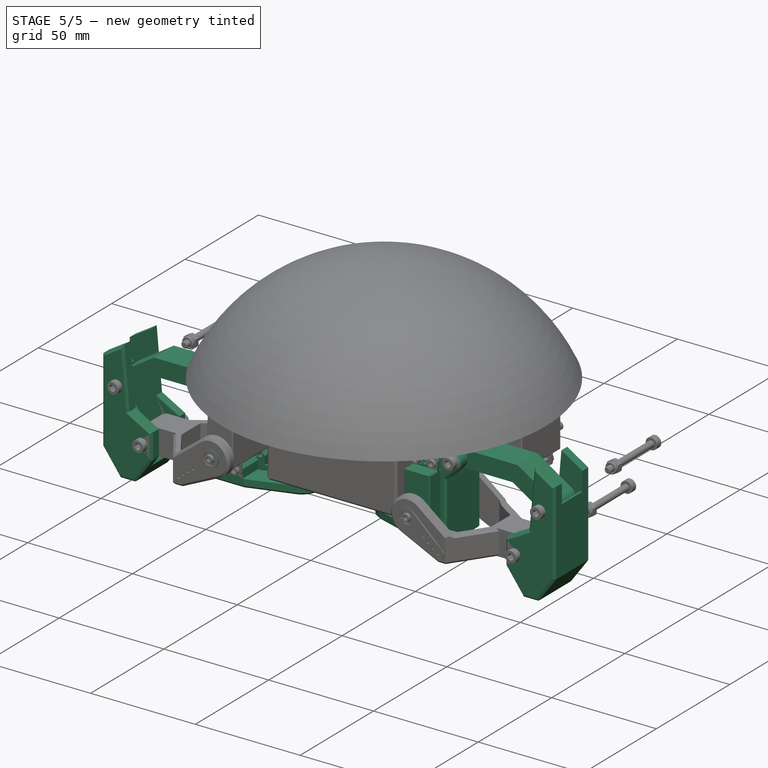
[diagram: stage 5 of 5 — iso view after this stage's code; geometry added in this stage tinted green]
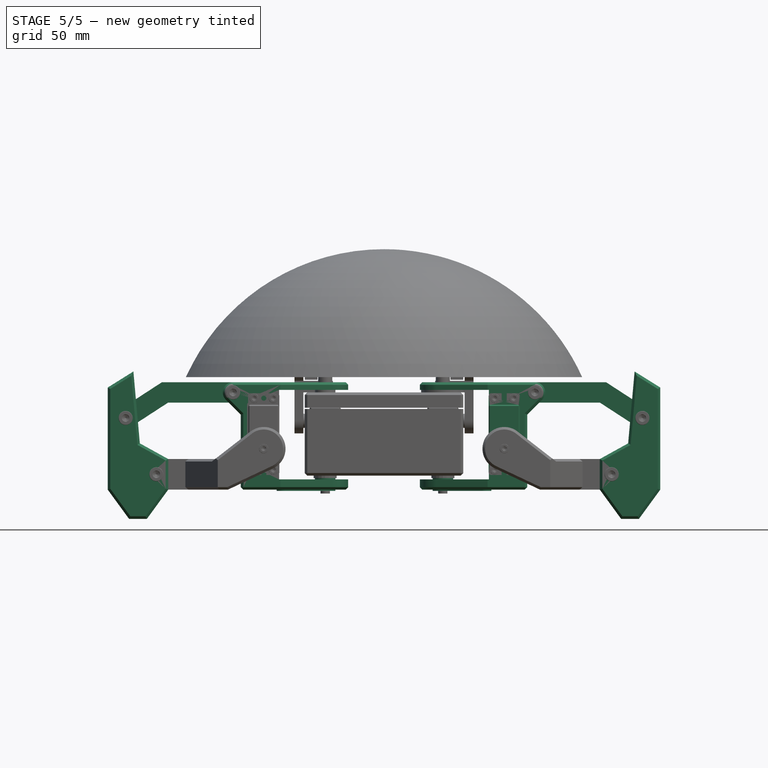
[diagram: stage 5 of 5 — front view after this stage's code; geometry added in this stage tinted green]
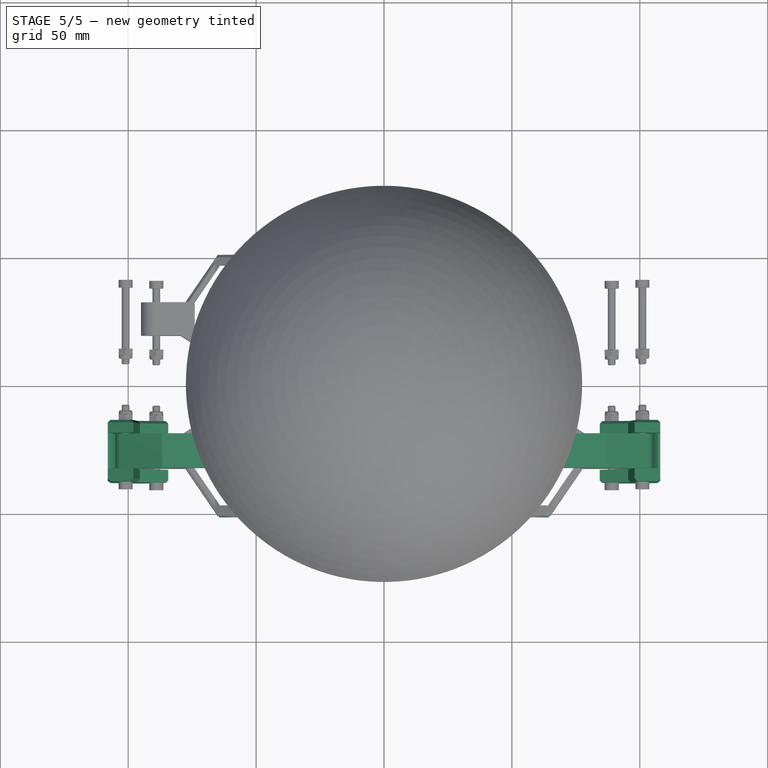
[diagram: stage 5 of 5 — top view after this stage's code; geometry added in this stage tinted green]
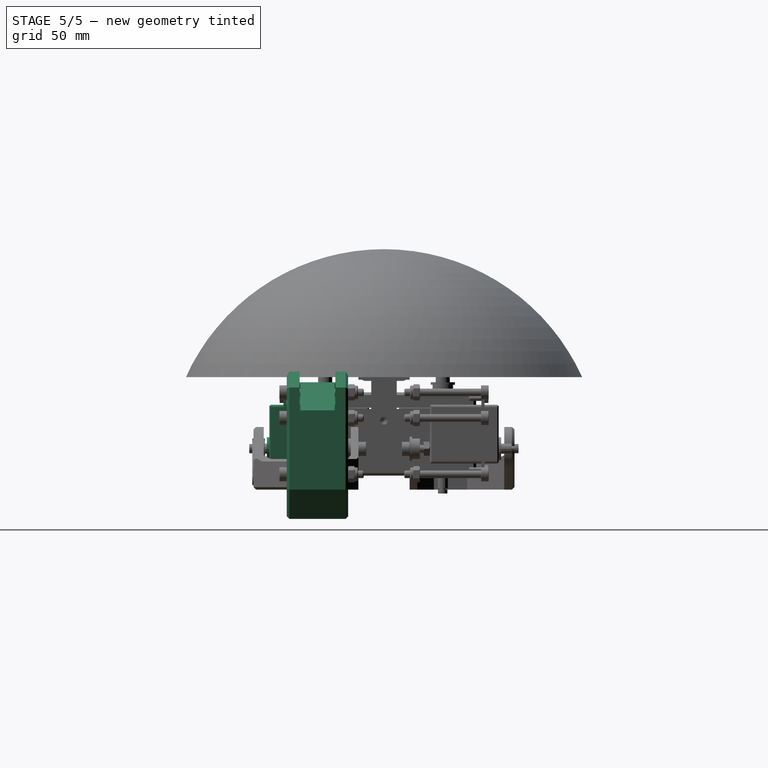
[diagram: stage 5 of 5 — right view after this stage's code; geometry added in this stage tinted green]
FEATURE [Part::FeaturePython] Clone005  label="Clone of TGY-306G003"  # Draft clone (typed FeaturePython)
  Objects = -> [Solid001]
  Placement = pos=(-23,23,23.3) rot=(0,1,0;3.14159rad)
  Scale = (1,1,1)
FEATURE [Part::FeaturePython] Clone  label="Clone of TGY-306G"  # Draft clone (typed FeaturePython)
  Objects = -> [Solid001]
  Placement = pos=(47,-18,7) rot=(0,-0.707107,0.707107;3.14159rad)
  Scale = (1,1,1)
FEATURE [Part::Cylinder] Cylinder012  label="Cilindro012"
  Angle = 360
  Height = 11
  Placement = pos=(-47,23,7) rot=(1,0,0;1.5708rad)
  Radius = 1.75
FEATURE [Sketcher::SketchObject] Sketch003
  Placement = pos=(0,0,-9) rot=(0,0,1;0rad)
  sketch-geometry (5):
    g0: ArcOfCircle CenterX=-23 CenterY=23 CenterZ=0 NormalX=0 NormalY=0 NormalZ=1 Radius=9 StartAngle=4.71239 EndAngle=7.5465
    g1: LineSegment StartX=-23 StartY=14 StartZ=0 EndX=-56 EndY=14 EndZ=0
    g2: LineSegment StartX=-56 StartY=14 StartZ=0 EndX=-56 EndY=38 EndZ=0
    g3: LineSegment StartX=-56 StartY=38 StartZ=0 EndX=-40.5 EndY=38 EndZ=0
    g4: LineSegment StartX=-40.5 StartY=38 StartZ=0 EndX=-20.2761 EndY=31.5779 EndZ=0
  constraints (16):
    c: Horizontal(g1)
    c: Coincident(g1,g2)
    c: Vertical(g2)
    c: Coincident(g2,g3)
    c: Horizontal(g3)
    c: Coincident(g3,g4)
    c: Coincident(g4,g0)
    c: Coincident(g0,g1)
    c: Tangent(g1,g0)
    c: Tangent(g4,g0)
    c: Radius(g0) = 9
    c: DistanceX(g-1,g0) = -23
    c: DistanceY(g-1,g0) = 23
    c: Distance(g1) = 33
    c: Distance(g2) = 24
    c: Distance(g3) = 15.5
FEATURE [PartDesign::Pad] Pad003
  Length = 42
  Length2 = 100
  Placement = pos=(0,0,-9) rot=(0,0,1;0rad)
  Sketch = -> Sketch003
  Type = 0
FEATURE [Part::Box] Box010  label="Cubo010"
  Height = 35
  Length = 35
  Placement = pos=(-41,0,-5) rot=(0,0,1;0rad)
  Width = 60
FEATURE [Part::Cut] Cut007
  Base = -> Pad003
  Tool = -> Box010
FEATURE [Sketcher::SketchObject] Sketch004
  Placement = pos=(0,14,0) rot=(0,0.707107,0.707107;3.14159rad)
  sketch-geometry (4):
    g0: ArcOfCircle CenterX=59 CenterY=29 CenterZ=0 NormalX=0 NormalY=0 NormalZ=1 Radius=4 StartAngle=5.49779 EndAngle=7.85398
    g1: LineSegment StartX=59 StartY=33 StartZ=0 EndX=54 EndY=33 EndZ=0
    g2: LineSegment StartX=54 StartY=33 StartZ=0 EndX=54 EndY=18.3431 EndZ=0
    g3: LineSegment StartX=54 StartY=18.3431 StartZ=0 EndX=61.8284 EndY=26.1716 EndZ=0
  constraints (12):
    c: Tangent(g0,g1) = -1.5708
    c: Coincident(g1,g2)
    c: Vertical(g2)
    c: Coincident(g2,g3)
    c: Coincident(g3,g0)
    c: Tangent(g0,g3)
    c: Horizontal(g1)
    c: Radius(g0) = 4
    c: Angle(g3,g2) = 0.785398
    c: DistanceY(g-1,g1) = 33
    c: DistanceX(g-1,g1) = 54
    c: Distance(g1) = 5
FEATURE [Part::Cylinder] Cylinder013  label="Cilindro013"
  Angle = 360
  Height = 14
  Placement = pos=(-59,19,29) rot=(-1,0,0;1.5708rad)
  Radius = 5.5
FEATURE [Part::Cut] Cut008
  Base = -> Cut007
  Tool = -> Cylinder013
FEATURE [PartDesign::Pad] Pad004
  Length = 5
  Length2 = 100
  Placement = pos=(0,14,0) rot=(0,0.707107,0.707107;3.14159rad)
  Sketch = -> Sketch004
  Type = 0
FEATURE [Part::FeaturePython] Clone006  label="Clone of Pad004"  # Draft clone (typed FeaturePython)
  Objects = -> [Pad004]
  Placement = pos=(0,33,0) rot=(0,0.707107,0.707107;3.14159rad)
  Scale = (1,1,1)
FEATURE [Part::MultiFuse] Fusion006
  Shapes = -> [Clone006,Pad004]
FEATURE [Part::Cylinder] Cylinder014  label="Cilindro014"
  Angle = 360
  Height = 36
  Placement = pos=(-59,8,29) rot=(-1,0,0;1.5708rad)
  Radius = 1.75
FEATURE [Part::Fillet] Fillet002
  Base = -> Cut008
  Edges = 2 edges r=0.5: [Edge26,Edge33]
FEATURE [Part::Chamfer] Chamfer002
  Base = -> Fusion006
  Edges = 2 edges r=1: [Edge3,Edge16]
FEATURE [Part::Chamfer] Chamfer003
  Base = -> Fillet002
  Edges = 7 edges r=1: [Edge6,Edge8,Edge10,Edge21,Edge23,Edge25,Edge37]
FEATURE [Part::Cut] Cut010
  Base = -> Chamfer003
  Tool = -> Cylinder012
FEATURE [Part::MultiFuse] Fusion007
  Shapes = -> [Cut010,Chamfer002]
FEATURE [Part::Cut] Cut011
  Base = -> Fusion007
  Tool = -> Cylinder014
FEATURE [Part::MultiFuse] Fusion008
  Placement = pos=(-23,23,32) rot=(0,0,1;0rad)
  Shapes = -> [Cylinder016,Cylinder017]
FEATURE [Part::Cut] Cut012
  Base = -> Cut011
  Tool = -> Fusion008
FEATURE [Sketcher::SketchObject] Sketch007
  Placement = pos=(0,19.25,0) rot=(0,0.707107,0.707107;3.14159rad)
  sketch-geometry (8):
    g0: ArcOfCircle CenterX=59 CenterY=29 CenterZ=0 NormalX=0 NormalY=0 NormalZ=1 Radius=4 StartAngle=1.5708 EndAngle=4.71239
    g1: LineSegment StartX=59 StartY=33 StartZ=0 EndX=86.7994 EndY=33 EndZ=0
    g2: LineSegment StartX=86.7994 StartY=33 StartZ=0 EndX=103.18 EndY=22.3539 EndZ=0
    g3: LineSegment StartX=59 StartY=25 StartZ=0 EndX=84.428 EndY=25 EndZ=0
    g4: LineSegment StartX=84.428 StartY=25 StartZ=0 EndX=98.8202 EndY=15.6461 EndZ=0
    g5: ArcOfCircle CenterX=101 CenterY=19 CenterZ=0 NormalX=0 NormalY=0 NormalZ=1 Radius=4 StartAngle=4.13607 EndAngle=7.27765
    g6: Circle CenterX=59 CenterY=29 CenterZ=0 NormalX=0 NormalY=0 NormalZ=1 Radius=1.7
    g7: Circle CenterX=101 CenterY=19 CenterZ=0 NormalX=0 NormalY=0 NormalZ=1 Radius=1.7
  constraints (22):
    c: Tangent(g0,g1) = 1.5708
    c: Coincident(g1,g2)
    c: Tangent(g0,g3) = -1.5708
    c: Coincident(g3,g4)
    c: Coincident(g5,g2)
    c: Coincident(g5,g4)
    c: Tangent(g2,g5)
    c: Tangent(g4,g5)
    c: Parallel(g1,g3)
    c: Parallel(g2,g4)
    c: Horizontal(g1)
    c: Radius(g0) = 4
    c: Equal(g0,g5)
    c: Coincident(g6,g0)
    c: Coincident(g7,g5)
    c: Radius(g6) = 1.7
    c: Equal(g6,g7)
    c: DistanceY(g-1,g0) = 29
    c: DistanceX(g-1,g0) = 59
    c: Angle(g1,g2) = 2.56527
    c: DistanceY(g0,g5) = -10  'z_length'
    c: DistanceX(g0,g5) = 42  'x_legth'
FEATURE [PartDesign::Pad] Pad007  label="legA"
  Length = 13.5
  Length2 = 100
  Placement = pos=(0,19.25,0) rot=(0,0.707107,0.707107;3.14159rad)
  Sketch = -> Sketch007
  Type = 0
FEATURE [Sketcher::SketchObject] Sketch008
  Placement = pos=(0,14,0) rot=(0,0.707107,0.707107;3.14159rad)
  sketch-geometry (14):
    g0: LineSegment StartX=84.3518 StartY=2.97051 StartZ=0 EndX=95.4438 EndY=9.10709 EndZ=0
    g1: LineSegment StartX=95.4438 StartY=9.10709 StartZ=0 EndX=97.9681 EndY=37.1902 EndZ=0
    g2: LineSegment StartX=97.9681 StartY=37.1902 StartZ=0 EndX=108 EndY=30.9216 EndZ=0
    g3: LineSegment StartX=108 StartY=30.9216 StartZ=0 EndX=108 EndY=-9 EndZ=0
    g4: LineSegment StartX=108 StartY=-9 StartZ=0 EndX=99.6759 EndY=-20.4078 EndZ=0
    g5: LineSegment StartX=99.6759 StartY=-20.4078 StartZ=0 EndX=92.6759 EndY=-20.4078 EndZ=0
    g6: LineSegment StartX=92.6759 StartY=-20.4078 StartZ=0 EndX=84.3518 EndY=-9 EndZ=0
    g7: LineSegment StartX=84.3518 StartY=2.97051 StartZ=0 EndX=84.3518 EndY=-9 EndZ=0
    g8: Circle [constr] CenterX=96.1759 CenterY=-9.11307 CenterZ=0 NormalX=0 NormalY=0 NormalZ=1 Radius=11.8246
    g9: LineSegment [constr] StartX=84.3518 StartY=-9 StartZ=0 EndX=108 EndY=-9 EndZ=0
    g10: Circle CenterX=101 CenterY=19 CenterZ=0 NormalX=0 NormalY=0 NormalZ=1 Radius=1.7
    g11: Circle CenterX=89 CenterY=-3 CenterZ=0 NormalX=0 NormalY=0 NormalZ=1 Radius=1.7
    g12: LineSegment [constr] StartX=89 StartY=-3 StartZ=0 EndX=84.3518 EndY=-3 EndZ=0
    g13: LineSegment [constr] StartX=96.3705 StartY=19.4161 StartZ=0 EndX=101 EndY=19 EndZ=0
  constraints (35):
    c: Coincident(g1,g2)
    c: Coincident(g2,g3)
    c: Coincident(g3,g4)
    c: Coincident(g4,g5)
    c: Horizontal(g5)
    c: Coincident(g5,g6)
    c: Coincident(g7,g0)
    c: Coincident(g7,g6)
    c: Vertical(g7)
    c: Coincident(g0,g1)
    c: PointOnObject(g6,g8)
    c: PointOnObject(g5,g8)
    c: PointOnObject(g4,g8)
    c: PointOnObject(g3,g8)
    c: Coincident(g9,g6)
    c: Coincident(g9,g3)
    c: Horizontal(g9)
    c: Vertical(g3)
    c: DistanceY(g-1,g6) = -9
    c: DistanceX(g11,g10) = 12
    c: DistanceY(g11,g10) = 22
    c: Coincident(g12,g11)
    c: PointOnObject(g12,g7)
    c: Perpendicular(g7,g12)
    c: PointOnObject(g13,g1)
    c: Coincident(g13,g10)
    c: Perpendicular(g1,g13)
    c: Equal(g13,g12)
    c: Radius(g10) = 1.7
    c: Equal(g10,g11)
    c: DistanceX(g11,g3) = 19
    c: DistanceY(g6,g11) = 6
    c: Distance(g5) = 7
    c: DistanceX(g-1,g11) = 89
    c: Angle(g2,g3) = 2.1293
FEATURE [PartDesign::Pad] Pad008
  Length = 24
  Length2 = 100
  Placement = pos=(0,14,0) rot=(0,0.707107,0.707107;3.14159rad)
  Sketch = -> Sketch008
  Type = 0
FEATURE [Sketcher::SketchObject] Sketch009
  Placement = pos=(0,33,0) rot=(0,0.707107,0.707107;3.14159rad)
  sketch-geometry (8):
    g0: ArcOfCircle CenterX=89 CenterY=-3 CenterZ=0 NormalX=0 NormalY=0 NormalZ=1 Radius=10 StartAngle=4.71239 EndAngle=5.67573
    g1: LineSegment StartX=97.2111 StartY=-8.70777 StartZ=0 EndX=106 EndY=3.93578 EndZ=0
    g2: LineSegment StartX=106 StartY=3.93578 StartZ=0 EndX=106 EndY=22 EndZ=0
    g3: LineSegment StartX=106 StartY=22 StartZ=0 EndX=112.578 EndY=22 EndZ=0
    g4: LineSegment StartX=112.578 StartY=22 StartZ=0 EndX=112.578 EndY=42.6594 EndZ=0
    g5: LineSegment StartX=112.578 StartY=42.6594 StartZ=0 EndX=77.1596 EndY=42.6594 EndZ=0
    g6: LineSegment StartX=77.1596 StartY=42.6594 StartZ=0 EndX=77.1596 EndY=-13 EndZ=0
    g7: LineSegment StartX=77.1596 StartY=-13 StartZ=0 EndX=89 EndY=-13 EndZ=0
  constraints (20):
    c: Tangent(g0,g1) = -1.5708
    c: Coincident(g1,g2)
    c: Vertical(g2)
    c: Coincident(g2,g3)
    c: Horizontal(g3)
    c: Coincident(g3,g4)
    c: Vertical(g4)
    c: Coincident(g4,g5)
    c: Horizontal(g5)
    c: Coincident(g5,g6)
    c: Vertical(g6)
    c: Coincident(g7,g6)
    c: Coincident(g7,g0)
    c: Horizontal(g7)
    c: Tangent(g7,g0)
    c: DistanceX(g-1,g1) = 106
    c: DistanceX(g-1,g0) = 89
    c: Radius(g0) = 10
    c: DistanceY(g-1,g0) = -3
    c: DistanceY(g-1,g2) = 22
FEATURE [PartDesign::Pad] Pad009
  Length = 14
  Length2 = 100
  Placement = pos=(0,33,0) rot=(0,0.707107,0.707107;3.14159rad)
  Reversed = true
  Sketch = -> Sketch009
  Type = 0
FEATURE [Part::Cut] Cut014
  Base = -> Pad008
  Tool = -> Pad009
FEATURE [Part::Chamfer] Chamfer005  label="foot"
  Base = -> Cut014
  Edges = 18 edges r=1: [Edge1,Edge5,Edge6,Edge7,Edge8,Edge9,Edge10,Edge11,Edge30,Edge35,Edge37,Edge38,Edge41,Edge49,Edge53,Edge54,Edge55,Edge56]
FEATURE [Sketcher::SketchObject] Sketch010  label="servo_room"
  Placement = pos=(0,41,0) rot=(0,0.707107,0.707107;3.14159rad)
  expr: Placement.Base.z = fake_axis_nut_room.Placement.Base.z - configuration.servo_D / 2 - 1
  expr: Constraints.length_B = configuration.servo_B + 2 * configuration.tolerance_default
  expr: Constraints.length_D = configuration.servo_D + 2 * configuration.tolerance_default + 0.5
  expr: Placement.Base.y = 59.5 - configuration.servo_F + 2 * configuration.tolerance_default
  sketch-geometry (27):
    g0: LineSegment StartX=40.5 StartY=24.5 StartZ=0 EndX=53.5 EndY=24.5 EndZ=0
    g1: LineSegment StartX=53.5 StartY=24.5 StartZ=0 EndX=53.5 EndY=1 EndZ=0
    g2: LineSegment StartX=53.5 StartY=1 StartZ=0 EndX=40.5 EndY=1 EndZ=0
    g3: LineSegment [constr] StartX=40.5 StartY=1 StartZ=0 EndX=40.5 EndY=24.5 EndZ=0
    g4: Circle CenterX=43.25 CenterY=26.75 CenterZ=0 NormalX=0 NormalY=0 NormalZ=1 Radius=1
    g5: Circle CenterX=50.75 CenterY=26.75 CenterZ=0 NormalX=0 NormalY=0 NormalZ=1 Radius=1
    g6: Circle CenterX=43.25 CenterY=-1.25 CenterZ=0 NormalX=0 NormalY=0 NormalZ=1 Radius=1
    g7: Circle CenterX=50.75 CenterY=-1.25 CenterZ=0 NormalX=0 NormalY=0 NormalZ=1 Radius=1
    g8: LineSegment [constr] StartX=50.75 StartY=26.75 StartZ=0 EndX=50.75 EndY=-1.25 EndZ=0
    g9: LineSegment [constr] StartX=43.25 StartY=-1.25 StartZ=0 EndX=43.25 EndY=26.75 EndZ=0
    g10: LineSegment [constr] StartX=40.5 StartY=24.5 StartZ=0 EndX=43.25 EndY=26.75 EndZ=0
    g11: LineSegment [constr] StartX=50.75 StartY=26.75 StartZ=0 EndX=53.5 EndY=24.5 EndZ=0
    g12: LineSegment [constr] StartX=40.5 StartY=1 StartZ=0 EndX=43.25 EndY=-1.25 EndZ=0
    g13: LineSegment [constr] StartX=53.5 StartY=1 StartZ=0 EndX=50.75 EndY=-1.25 EndZ=0
    g14: LineSegment [constr] StartX=40.5 StartY=24.5 StartZ=0 EndX=47 EndY=12.75 EndZ=0
    g15: LineSegment [constr] StartX=47 StartY=12.75 StartZ=0 EndX=53.5 EndY=1 EndZ=0
    g16: LineSegment [constr] StartX=47 StartY=12.75 StartZ=0 EndX=53.5 EndY=24.5 EndZ=0
    g17: LineSegment [constr] StartX=47 StartY=12.75 StartZ=0 EndX=40.5 EndY=1 EndZ=0
    g18: LineSegment [constr] StartX=43.25 StartY=26.75 StartZ=0 EndX=47 EndY=26.75 EndZ=0
    g19: LineSegment [constr] StartX=47 StartY=26.75 StartZ=0 EndX=50.75 EndY=26.75 EndZ=0
    g20: LineSegment [constr] StartX=43.25 StartY=-1.25 StartZ=0 EndX=47 EndY=-1.25 EndZ=0
    g21: LineSegment [constr] StartX=47 StartY=-1.25 StartZ=0 EndX=50.75 EndY=-1.25 EndZ=0
    g22: Circle CenterX=47 CenterY=-1.25 CenterZ=0 NormalX=0 NormalY=0 NormalZ=1 Radius=1
    g23: Circle CenterX=47 CenterY=26.75 CenterZ=0 NormalX=0 NormalY=0 NormalZ=1 Radius=1
    g24: LineSegment StartX=40.5 StartY=24.5 StartZ=0 EndX=30.5 EndY=24.5 EndZ=0
    g25: LineSegment StartX=30.5 StartY=24.5 StartZ=0 EndX=30.5 EndY=1 EndZ=0
    g26: LineSegment StartX=30.5 StartY=1 StartZ=0 EndX=40.5 EndY=1 EndZ=0
  constraints (67):
    c: Coincident(g0,g1)
    c: Coincident(g1,g2)
    c: Coincident(g2,g3)
    c: Coincident(g3,g0)
    c: Horizontal(g0)
    c: Horizontal(g2)
    c: Vertical(g1)
    c: Vertical(g8)
    c: Vertical(g9)
    c: Coincident(g8,g7)
    c: Coincident(g10,g0)  'Constraint21'
    c: Coincident(g10,g4)  'Constraint18'
    c: Coincident(g11,g5)  'Constraint15'
    c: Coincident(g11,g0)  'Constraint14'
    c: Coincident(g12,g2)
    c: Coincident(g12,g6)
    c: Coincident(g13,g1)
    c: Coincident(g13,g7)
    c: Radius(g4) = 1
    c: Equal(g4,g5)
    c: Equal(g4,g6)
    c: Equal(g4,g7)
    c: Distance(g2) = 13  'length_D'
    c: Distance(g3) = 23.5  'length_B'
    c: Coincident(g14,g0)  'Constraint44'
    c: Coincident(g15,g14)  'Constraint40'
    c: Coincident(g15,g1)  'Constraint37'
    c: Coincident(g16,g14)  'Constraint35'
    c: Coincident(g16,g0)  'Constraint34'
    c: Coincident(g17,g14)  'Constraint33'
    c: Coincident(g17,g2)  'Constraint32'
    c: Equal(g14,g16)
    c: Equal(g16,g15)
    c: Equal(g15,g17)
    c: DistanceY(g-1,g14) = 12.75  'servo_center'
    c: DistanceX(g-1,g14) = 47
    c: Coincident(g18,g4)
    c: Coincident(g18,g19)
    c: Coincident(g19,g5)
    c: Horizontal(g19)
    c: Coincident(g4,g9)
    c: Coincident(g8,g5)
    c: Coincident(g20,g6)
    c: Horizontal(g20)
    c: Coincident(g20,g21)
    c: Coincident(g21,g7)
    c: Coincident(g22,g20)
    c: Coincident(g23,g18)
    c: Equal(g23,g5)
    c: Equal(g18,g19)
    c: Equal(g20,g21)
    c: Equal(g22,g6)
    c: Coincident(g9,g6)
    c: Horizontal(g21)
    c: Horizontal(g18)
    c: Equal(g10,g11)
    c: Equal(g10,g12)
    c: Distance(g6,g7) = 7.5
    c: DistanceY(g0,g4) = 2.25
    c: Coincident(g0,g24)
    c: Horizontal(g24)
    c: Coincident(g24,g25)
    c: Vertical(g25)
    c: Coincident(g25,g26)
    c: Coincident(g26,g2)
    c: Horizontal(g26)
    c: Distance(g26) = 10
FEATURE [PartDesign::Pad] Pad010
  Length = 22.5
  Length2 = 100
  Placement = pos=(0,41,0) rot=(0,0.707107,0.707107;3.14159rad)
  Reversed = true
  Sketch = -> Sketch010
  Type = 0
FEATURE [Part::Cut] Cut015
  Base = -> Cut012
  Tool = -> Pad010
FEATURE [Sketcher::SketchObject] Sketch011
  Placement = pos=(0,0,-10) rot=(1,0,0;3.14159rad)
  sketch-geometry (4):
    g0: ArcOfCircle CenterX=-48.5 CenterY=-25 CenterZ=0 NormalX=0 NormalY=0 NormalZ=1 Radius=2.2 StartAngle=1.5708 EndAngle=4.71239
    g1: ArcOfCircle CenterX=-39.5 CenterY=-25 CenterZ=0 NormalX=0 NormalY=0 NormalZ=1 Radius=2.2 StartAngle=4.71239 EndAngle=7.85398
    g2: LineSegment StartX=-48.5 StartY=-27.2 StartZ=0 EndX=-39.5 EndY=-27.2 EndZ=0
    g3: LineSegment StartX=-48.5 StartY=-22.8 StartZ=0 EndX=-39.5 EndY=-22.8 EndZ=0
  constraints (10):
    c: Tangent(g0,g3) = 1.5708
    c: Tangent(g0,g2) = -1.5708
    c: Tangent(g2,g1) = -1.5708
    c: Tangent(g3,g1) = 1.5708
    c: Horizontal(g2)
    c: Equal(g0,g1)
    c: Distance(g3) = 9
    c: Radius(g0) = 2.2
    c: DistanceX(g-1,g0) = -48.5
    c: DistanceY(g-1,g0) = -25
FEATURE [PartDesign::Pad] Pad011
  Length = 15
  Length2 = 100
  Placement = pos=(0,0,-10) rot=(1,0,0;3.14159rad)
  Reversed = true
  Sketch = -> Sketch011
  Type = 0
FEATURE [Part::Chamfer] Chamfer006
  Base = -> Cut015
  Edges = 1 edges r=2: [Edge57]
FEATURE [Part::Cut] Cut016
  Base = -> Chamfer006
  Tool = -> Pad011
FEATURE [Part::Chamfer] Chamfer007
  Base = -> Cut016
  Edges = 1 edges r=1: [Edge97]
FEATURE [Part::Prism] Prism008  label="fake_axis_nut_room"
  Circumradius = 3.2
  Height = 10
  Placement = pos=(-47,25.5,7) rot=(1,0,0;1.5708rad)
  Polygon = 6
FEATURE [Part::Cut] Cut017
  Base = -> Chamfer007
  Tool = -> Prism008
FEATURE [Part::Feature] Cut018  label="horn001"
  Placement = pos=(-23,23,-4.5) rot=(0.866025,0.5,0;3.14159rad)
  shape: bbox 22.95 x 16 x 5 mm, 16 faces (baked)
FEATURE [Part::FeaturePython] Clone007  label="Clone of horn001"  # Draft clone (typed FeaturePython)
  Objects = -> [Cut018]
  Placement = pos=(-23,23,-4.5) rot=(0.866025,0.5,0;3.14159rad)
  Scale = (1,1,1)
FEATURE [Part::FeaturePython] Clone008  label="Clone of horn002"  # Draft clone (typed FeaturePython)
  Objects = -> [Cut018]
  Placement = pos=(-47.025,46.5,7.03288) rot=(0.324098,0.66894,0.66894;3.76843rad)
  Scale = (1,1,1)
FEATURE [Sketcher::SketchObject] Sketch014
  Placement = pos=(23.25,34,-10) rot=(0,0,1;3.22886rad)
  sketch-geometry (4):
    g0: ArcOfCircle CenterX=47 CenterY=7 CenterZ=0 NormalX=0 NormalY=0 NormalZ=1 Radius=4.25 StartAngle=0.879517 EndAngle=4.17917
    g1: ArcOfCircle CenterX=62.5488 CenterY=-3.91947 CenterZ=0 NormalX=0 NormalY=0 NormalZ=1 Radius=2.75 StartAngle=4.17917 EndAngle=7.1627
    g2: LineSegment StartX=49.7095 StartY=10.2743 StartZ=0 EndX=64.302 EndY=-1.80079 EndZ=0
    g3: LineSegment StartX=44.8397 StartY=3.34 StartZ=0 EndX=61.151 EndY=-6.2877 EndZ=0
  constraints (13):
    c: Coincident(g2,g0)
    c: Coincident(g2,g1)
    c: Coincident(g3,g0)
    c: Coincident(g1,g3)
    c: Tangent(g0,g3)
    c: Tangent(g0,g2)
    c: Tangent(g2,g1)
    c: Tangent(g3,g1)
    c: Radius(g0) = 4.25
    c: Radius(g1) = 2.75
    c: Distance(g0,g1) = 19
    c: DistanceY(g-1,g0) = 7
    c: DistanceX(g-1,g0) = 47
FEATURE [PartDesign::Pad] Pad014
  Length = 3
  Length2 = 100
  Placement = pos=(23.25,34,-10) rot=(0,0,1;3.22886rad)
  Sketch = -> Sketch014
  Type = 0
FEATURE [Part::MultiFuse] Fusion011
  Shapes = -> [Pad014,Pad015]
FEATURE [Part::Cut] Cut020  label="bracket"
  Base = -> Cut017
  Tool = -> Fusion011
FEATURE [Part::Mirroring] Part__Mirroring006  label="Clone of horn001 (Mirror #7)"
  Base = (0,0,0)
  Normal = (1,0,0)
  Source = -> Clone007
FEATURE [Part::Mirroring] Part__Mirroring007  label="Clone of horn002 (Mirror #8)"
  Base = (0,0,0)
  Normal = (1,0,0)
  Source = -> Clone008
FEATURE [Part::Mirroring] Part__Mirroring008  label="Clone of horn001 (Mirror #9)"
  Base = (0,0,0)
  Normal = (0,1,0)
  Source = -> Clone007
FEATURE [Part::Mirroring] Part__Mirroring009  label="Clone of horn002 (Mirror #10)"
  Base = (0,0,0)
  Normal = (0,1,0)
  Source = -> Clone008
FEATURE [Part::Mirroring] Part__Mirroring010  label="Clone of horn001 (Mirror #11)"
  Base = (0,0,0)
  Normal = (0,1,0)
  Source = -> Part__Mirroring006
FEATURE [Part::Mirroring] Part__Mirroring011  label="Clone of horn002 (Mirror #12)"
  Base = (0,0,0)
  Normal = (0,1,0)
  Source = -> Part__Mirroring007
FEATURE [App::DocumentObjectGroup] Grupo006  label="horns"
  Group = -> [Part__Mirroring008,Part__Mirroring009,Part__Mirroring010,Part__Mirroring011]
FEATURE [Part::FeaturePython] Clone011  label="Clone of legA"  # Draft clone (typed FeaturePython)
  Objects = -> [Pad007]
  Placement = pos=(0,19.25,0) rot=(0,0.707107,0.707107;3.14159rad)
  Scale = (1,1,1)
FEATURE [Part::FeaturePython] Clone012  label="Clone of foot"  # Draft clone (typed FeaturePython)
  Objects = -> [Chamfer005]
  Scale = (1,1,1)
FEATURE [Part::FeaturePython] Clone014  label="Clone of bracket"  # Draft clone (typed FeaturePython)
  Objects = -> [Cut020]
  Scale = (1,1,1)
FEATURE [Part::Mirroring] Part__Mirroring014  label="Clone of legA (Mirror #15)"
  Base = (0,0,0)
  Normal = (1,0,0)
  Source = -> Clone011
FEATURE [Part::Mirroring] Part__Mirroring015  label="Clone of foot (Mirror #16)"
  Base = (0,0,0)
  Normal = (1,0,0)
  Source = -> Clone012
FEATURE [Part::Mirroring] Part__Mirroring017  label="Clone of bracket (Mirror #18)"
  Base = (0,0,0)
  Normal = (1,0,0)
  Source = -> Clone014
FEATURE [Part::Mirroring] Part__Mirroring018  label="Clone of legA (Mirror #17)"
  Base = (0,0,0)
  Normal = (0,1,0)
  Source = -> Clone011
FEATURE [Part::Mirroring] Part__Mirroring019  label="Clone of foot (Mirror #18)"
  Base = (0,0,0)
  Normal = (0,1,0)
  Source = -> Clone012
FEATURE [Part::Mirroring] Part__Mirroring021  label="Clone of bracket (Mirror #20)"
  Base = (0,0,0)
  Normal = (0,1,0)
  Source = -> Clone014
FEATURE [Part::Mirroring] Part__Mirroring022  label="Clone of legA (Mirror #21)"
  Base = (67.9687,3.8147e-06,24.0028)
  Normal = (0,1,-1.19209e-07)
  Source = -> Part__Mirroring014
FEATURE [Part::Mirroring] Part__Mirroring023  label="Clone of foot (Mirror #22)"
  Base = (0,0,0)
  Normal = (0,1,0)
  Source = -> Part__Mirroring015
FEATURE [Part::Mirroring] Part__Mirroring025  label="Clone of bracket (Mirror #24)"
  Base = (0,0,0)
  Normal = (0,1,0)
  Source = -> Part__Mirroring017
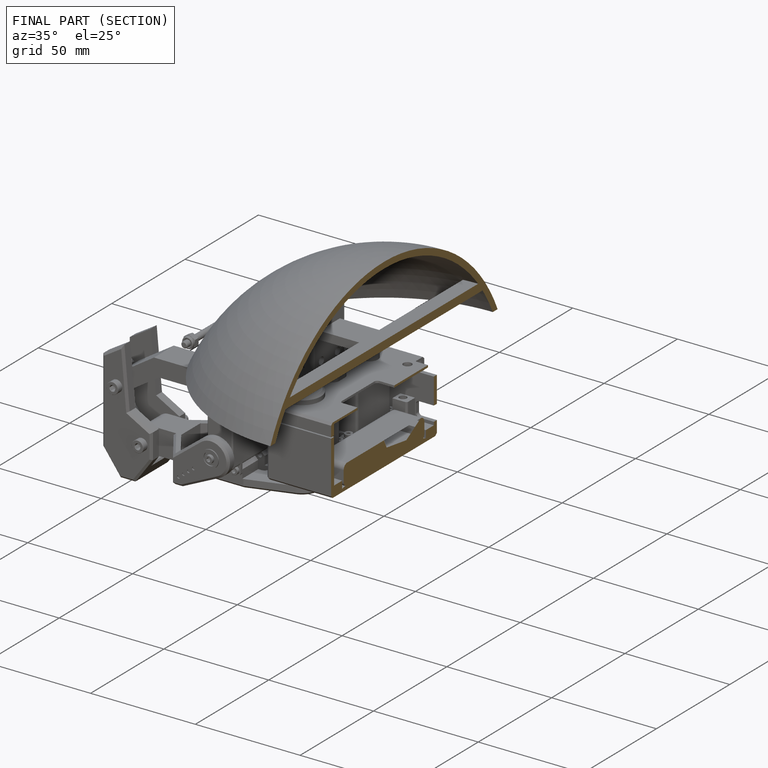
[diagram: finished part — half-section view (interior)]
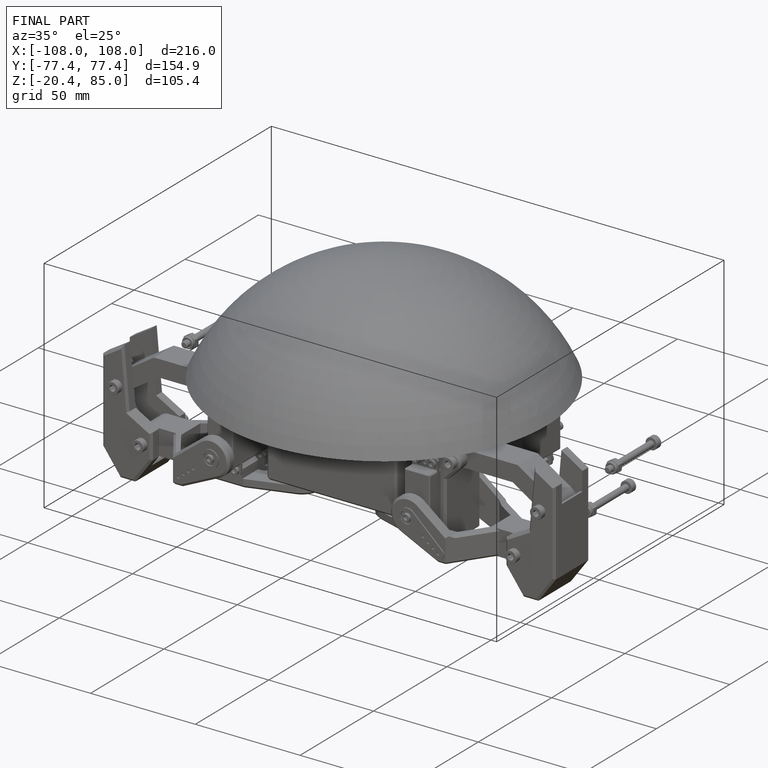
[diagram: finished part — iso view with bounding-box wireframe]
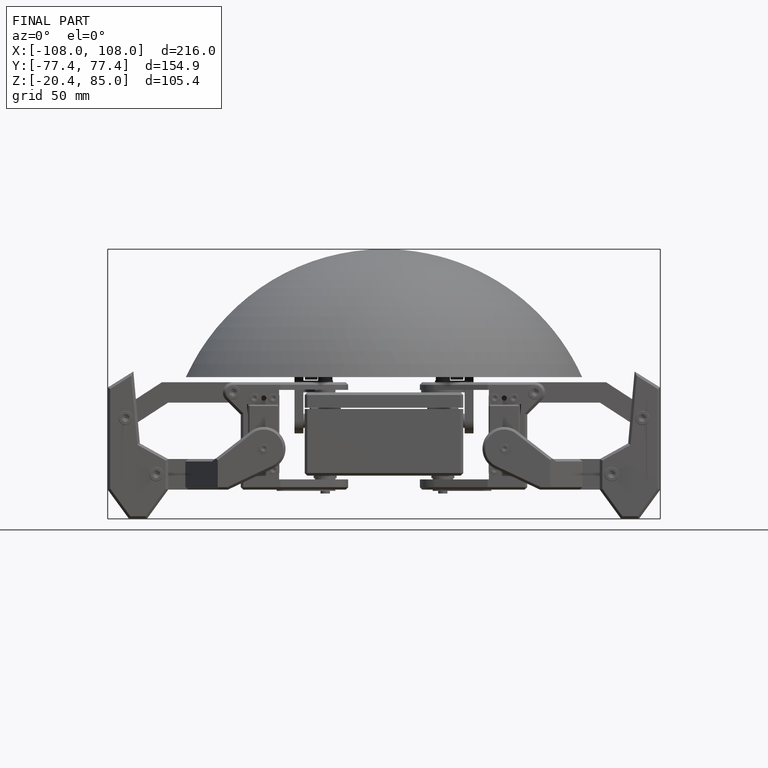
[diagram: finished part — front view with bounding-box wireframe]
